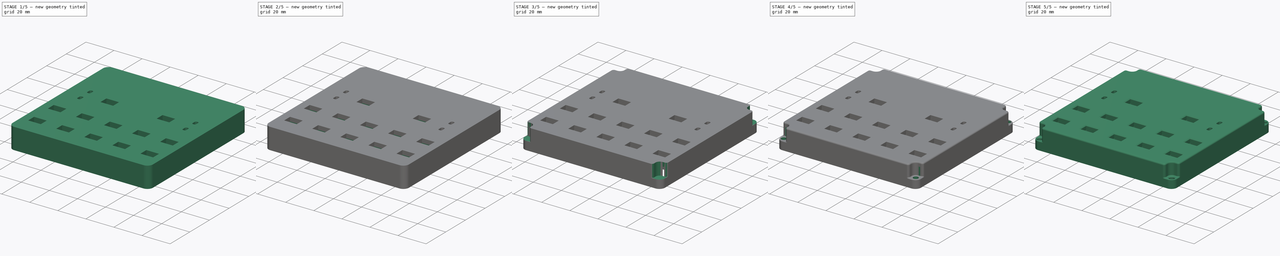
[diagram: build sequence overview — one tinted view per stage of 5, left to right]
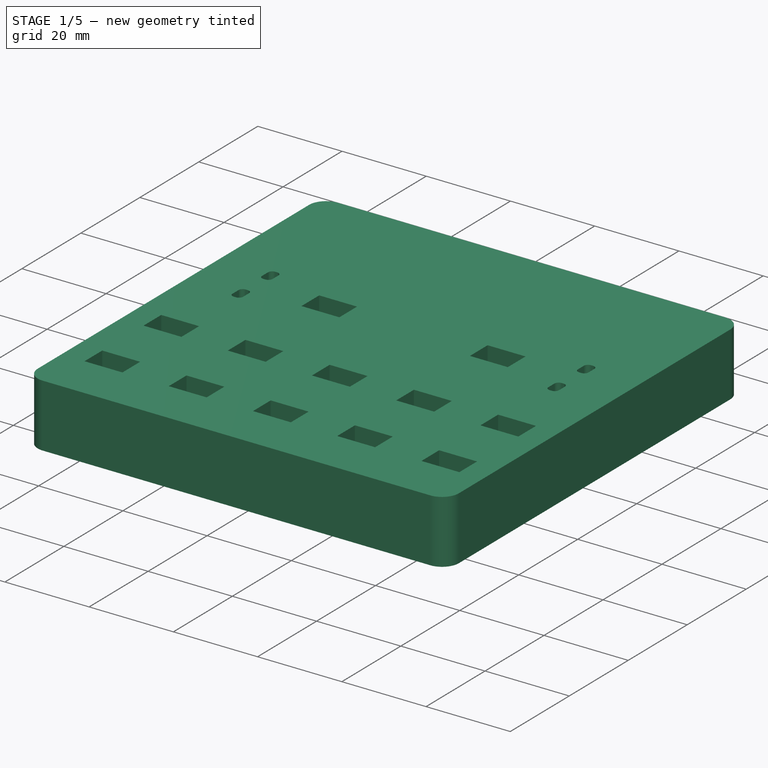
[diagram: stage 1 of 5 — iso view after this stage's code; geometry added in this stage tinted green]
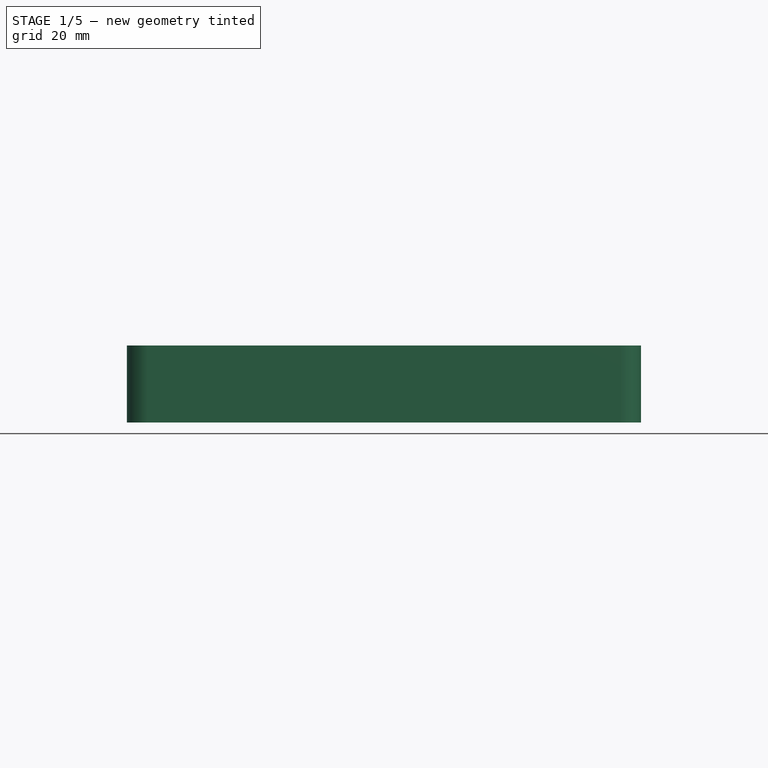
[diagram: stage 1 of 5 — front view after this stage's code; geometry added in this stage tinted green]
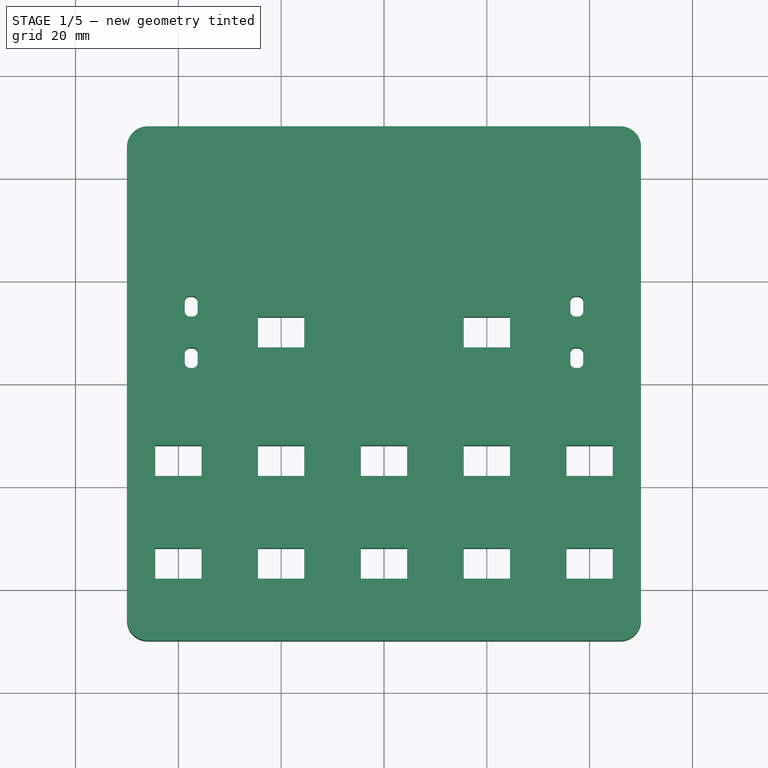
[diagram: stage 1 of 5 — top view after this stage's code; geometry added in this stage tinted green]
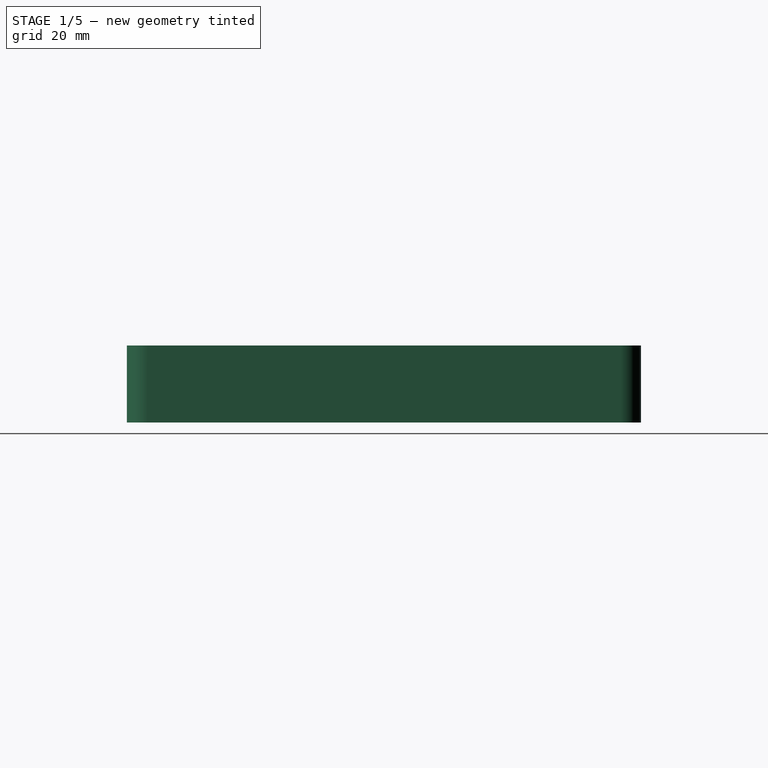
[diagram: stage 1 of 5 — right view after this stage's code; geometry added in this stage tinted green]
FCSTD DOCUMENT  (FreeCAD 0.21R33771 (Git))
Label: Case
License: All rights reserved
LicenseURL: http://en.wikipedia.org/wiki/All_rights_reserved
objects: Sketcher::SketchObject×12, PartDesign::Pocket×10, PartDesign::Fillet×3, PartDesign::Pad×2, PartDesign::Chamfer×2, PartDesign::Body×1
note: 47 computed .brp shape members not serialized (recipe doc carries the construction recipe); baked Part::Feature solids carry a one-line shape summary decoded from their .brp

FEATURE [Sketcher::SketchObject] Sketch  label="Base"
  FullyConstrained = true
  MapMode = 5
  Support = -> [XY_Plane]
  sketch-geometry (13):
    g0: LineSegment StartX=-50 StartY=46 StartZ=0 EndX=-50 EndY=-46 EndZ=0
    g1: LineSegment StartX=-46 StartY=-50 StartZ=0 EndX=46 EndY=-50 EndZ=0
    g2: LineSegment StartX=50 StartY=-46 StartZ=0 EndX=50 EndY=46 EndZ=0
    g3: LineSegment StartX=46 StartY=50 StartZ=0 EndX=-46 EndY=50 EndZ=0
    g4: GeomPoint X=0 Y=0 Z=0
    g5: ArcOfCircle CenterX=-46 CenterY=46 CenterZ=0 NormalX=0 NormalY=0 NormalZ=1 AngleXU=0 Radius=4 StartAngle=1.5708 EndAngle=3.14159
    g6: GeomPoint X=-50 Y=50 Z=0
    g7: ArcOfCircle CenterX=-46 CenterY=-46 CenterZ=0 NormalX=0 NormalY=0 NormalZ=1 AngleXU=0 Radius=4 StartAngle=3.14159 EndAngle=4.71239
    g8: GeomPoint X=-50 Y=-50 Z=0
    g9: ArcOfCircle CenterX=46 CenterY=-46 CenterZ=0 NormalX=0 NormalY=0 NormalZ=1 AngleXU=0 Radius=4 StartAngle=4.71239 EndAngle=6.28319
    g10: GeomPoint X=50 Y=-50 Z=0
    g11: ArcOfCircle CenterX=46 CenterY=46 CenterZ=0 NormalX=0 NormalY=0 NormalZ=1 AngleXU=0 Radius=4 StartAngle=7e-16 EndAngle=1.5708
    g12: GeomPoint X=50 Y=50 Z=0
  constraints (28):
    c: Horizontal(g1)
    c: Horizontal(g3)
    c: Vertical(g0)
    c: Vertical(g2)
    c: Symmetric(g10,g6,g4)
    c: Coincident(g4,g-1)
    c: DistanceX(g6,g12) = 100
    c: DistanceY(g10,g12) = 100
    c: PointOnObject(g6,g3)
    c: PointOnObject(g6,g0)
    c: Tangent(g3,g5) = -1.5708
    c: Tangent(g0,g5) = -1.5708
    c: PointOnObject(g8,g0)
    c: PointOnObject(g8,g1)
    c: Tangent(g0,g7) = -1.5708
    c: Tangent(g1,g7) = -1.5708
    c: PointOnObject(g10,g1)
    c: PointOnObject(g10,g2)
    c: Tangent(g1,g9) = -1.5708
    c: Tangent(g2,g9) = -1.5708
    c: PointOnObject(g12,g3)
    c: PointOnObject(g12,g2)
    c: Tangent(g3,g11) = -1.5708
    c: Tangent(g2,g11) = -1.5708
    c: Equal(g5,g11)
    c: Equal(g5,g9)
    c: Equal(g5,g7)
    c: Radius(g5) = 4
FEATURE [PartDesign::Pad] Pad  label="Base001"
  Direction = (0,0,1)
  Length = 15
  Length2 = 10
  Profile = -> Sketch
  ReferenceAxis = -> Sketch [N_Axis]
  Type = 0
FEATURE [Sketcher::SketchObject] Sketch001  label="Keycap holes"
  FullyConstrained = false
  MapMode = 5
  Placement = pos=(0,0,15) rot=(0,0,1;0rad)
  Support = -> [Pad]
  sketch-geometry (69):
    g0: LineSegment StartX=-35.5 StartY=-18 StartZ=0 EndX=-35.5 EndY=-12 EndZ=0
    g1: LineSegment StartX=-35.5 StartY=-12 StartZ=0 EndX=-44.5 EndY=-12 EndZ=0
    g2: LineSegment StartX=-44.5 StartY=-12 StartZ=0 EndX=-44.5 EndY=-18 EndZ=0
    g3: LineSegment StartX=-44.5 StartY=-18 StartZ=0 EndX=-35.5 EndY=-18 EndZ=0
    g4: GeomPoint X=-40 Y=-15 Z=0
    g5: GeomPoint X=-20 Y=-15 Z=0
    g6: LineSegment StartX=-15.5 StartY=-18 StartZ=0 EndX=-15.5 EndY=-12 EndZ=0
    g7: LineSegment StartX=-15.5 StartY=-12 StartZ=0 EndX=-24.5 EndY=-12 EndZ=0
    g8: LineSegment StartX=-24.5 StartY=-12 StartZ=0 EndX=-24.5 EndY=-18 EndZ=0
    g9: LineSegment StartX=-24.5 StartY=-18 StartZ=0 EndX=-15.5 EndY=-18 EndZ=0
    g10: LineSegment StartX=-40 StartY=-15 StartZ=0 EndX=-20 EndY=-15 EndZ=0
    g11: GeomPoint X=7.4479e-12 Y=-15 Z=0
    g12: LineSegment StartX=4.5 StartY=-18 StartZ=0 EndX=4.5 EndY=-12 EndZ=0
    g13: LineSegment StartX=4.5 StartY=-12 StartZ=0 EndX=-4.5 EndY=-12 EndZ=0
    g14: LineSegment StartX=-4.5 StartY=-12 StartZ=0 EndX=-4.5 EndY=-18 EndZ=0
    g15: LineSegment StartX=-4.5 StartY=-18 StartZ=0 EndX=4.5 EndY=-18 EndZ=0
    g16: LineSegment StartX=-20 StartY=-15 StartZ=0 EndX=7.4465e-12 EndY=-15 EndZ=0
    g17: GeomPoint X=20 Y=-15 Z=0
    g18: LineSegment StartX=24.5 StartY=-18 StartZ=0 EndX=24.5 EndY=-12 EndZ=0
    g19: LineSegment StartX=24.5 StartY=-12 StartZ=0 EndX=15.5 EndY=-12 EndZ=0
    g20: LineSegment StartX=15.5 StartY=-12 StartZ=0 EndX=15.5 EndY=-18 EndZ=0
    g21: LineSegment StartX=15.5 StartY=-18 StartZ=0 EndX=24.5 EndY=-18 EndZ=0
    g22: LineSegment StartX=7.4479e-12 StartY=-15 StartZ=0 EndX=20 EndY=-15 EndZ=0
    g23: GeomPoint X=40 Y=-15 Z=0
    g24: LineSegment StartX=44.5 StartY=-18 StartZ=0 EndX=44.5 EndY=-12 EndZ=0
    g25: LineSegment StartX=44.5 StartY=-12 StartZ=0 EndX=35.5 EndY=-12 EndZ=0
    g26: LineSegment StartX=35.5 StartY=-12 StartZ=0 EndX=35.5 EndY=-18 EndZ=0
    g27: LineSegment StartX=35.5 StartY=-18 StartZ=0 EndX=44.5 EndY=-18 EndZ=0
    g28: LineSegment StartX=20 StartY=-15 StartZ=0 EndX=40 EndY=-15 EndZ=0
    g29: GeomPoint X=-40 Y=-35 Z=0
    g30: LineSegment StartX=-35.5 StartY=-38 StartZ=0 EndX=-35.5 EndY=-32 EndZ=0
    g31: LineSegment StartX=-35.5 StartY=-32 StartZ=0 EndX=-44.5 EndY=-32 EndZ=0
    g32: LineSegment StartX=-44.5 StartY=-32 StartZ=0 EndX=-44.5 EndY=-38 EndZ=0
    g33: LineSegment StartX=-44.5 StartY=-38 StartZ=0 EndX=-35.5 EndY=-38 EndZ=0
    g34: LineSegment StartX=-40 StartY=-15 StartZ=0 EndX=-40 EndY=-35 EndZ=0
    g35: GeomPoint X=-20 Y=-35 Z=0
    g36: LineSegment StartX=-15.5 StartY=-38 StartZ=0 EndX=-15.5 EndY=-32 EndZ=0
    g37: LineSegment StartX=-15.5 StartY=-32 StartZ=0 EndX=-24.5 EndY=-32 EndZ=0
    g38: LineSegment StartX=-24.5 StartY=-32 StartZ=0 EndX=-24.5 EndY=-38 EndZ=0
    g39: LineSegment StartX=-24.5 StartY=-38 StartZ=0 EndX=-15.5 EndY=-38 EndZ=0
    g40: LineSegment StartX=-40 StartY=-35 StartZ=0 EndX=-20 EndY=-35 EndZ=0
    g41: GeomPoint X=6.98e-14 Y=-35 Z=0
    g42: LineSegment StartX=4.5 StartY=-38 StartZ=0 EndX=4.5 EndY=-32 EndZ=0
    g43: LineSegment StartX=4.5 StartY=-32 StartZ=0 EndX=-4.5 EndY=-32 EndZ=0
    g44: LineSegment StartX=-4.5 StartY=-32 StartZ=0 EndX=-4.5 EndY=-38 EndZ=0
    g45: LineSegment StartX=-4.5 StartY=-38 StartZ=0 EndX=4.5 EndY=-38 EndZ=0
    g46: LineSegment StartX=-20 StartY=-35 StartZ=0 EndX=7.11e-14 EndY=-35 EndZ=0
    g47: GeomPoint X=20 Y=-35 Z=0
    g48: LineSegment StartX=24.5 StartY=-38 StartZ=0 EndX=24.5 EndY=-32 EndZ=0
    g49: LineSegment StartX=24.5 StartY=-32 StartZ=0 EndX=15.5 EndY=-32 EndZ=0
    g50: LineSegment StartX=15.5 StartY=-32 StartZ=0 EndX=15.5 EndY=-38 EndZ=0
    g51: LineSegment StartX=15.5 StartY=-38 StartZ=0 EndX=24.5 EndY=-38 EndZ=0
    g52: LineSegment StartX=6.98e-14 StartY=-35 StartZ=0 EndX=20 EndY=-35 EndZ=0
    g53: GeomPoint X=40 Y=-35 Z=0
    g54: LineSegment StartX=44.5 StartY=-38 StartZ=0 EndX=44.5 EndY=-32 EndZ=0
    g55: LineSegment StartX=44.5 StartY=-32 StartZ=0 EndX=35.5 EndY=-32 EndZ=0
    g56: LineSegment StartX=35.5 StartY=-32 StartZ=0 EndX=35.5 EndY=-38 EndZ=0
    g57: LineSegment StartX=35.5 StartY=-38 StartZ=0 EndX=44.5 EndY=-38 EndZ=0
    g58: LineSegment StartX=20 StartY=-35 StartZ=0 EndX=40 EndY=-35 EndZ=0
    g59: GeomPoint X=-20 Y=10 Z=0
    g60: LineSegment StartX=-15.5 StartY=7 StartZ=0 EndX=-15.5 EndY=13 EndZ=0
    g61: LineSegment StartX=-15.5 StartY=13 StartZ=0 EndX=-24.5 EndY=13 EndZ=0
    g62: LineSegment StartX=-24.5 StartY=13 StartZ=0 EndX=-24.5 EndY=7 EndZ=0
    g63: LineSegment StartX=-24.5 StartY=7 StartZ=0 EndX=-15.5 EndY=7 EndZ=0
    g64: LineSegment StartX=24.5 StartY=7 StartZ=0 EndX=24.5 EndY=13 EndZ=0
    g65: LineSegment StartX=24.5 StartY=13 StartZ=0 EndX=15.5 EndY=13 EndZ=0
    g66: LineSegment StartX=15.5 StartY=13 StartZ=0 EndX=15.5 EndY=7 EndZ=0
    g67: LineSegment StartX=15.5 StartY=7 StartZ=0 EndX=24.5 EndY=7 EndZ=0
    g68: GeomPoint X=20 Y=10 Z=0
  constraints (174):
    c: Coincident(g0,g1)
    c: Coincident(g1,g2)
    c: Coincident(g2,g3)
    c: Coincident(g3,g0)
    c: Horizontal(g1)
    c: Horizontal(g3)
    c: Vertical(g0)
    c: Vertical(g2)
    c: Symmetric(g1,g0,g4)
    c: DistanceX(g1,g1) = 9
    c: DistanceY(g0,g0) = 6
    c: Coincident(g6,g7)
    c: Coincident(g7,g8)
    c: Coincident(g8,g9)
    c: Coincident(g9,g6)
    c: Horizontal(g7)
    c: Horizontal(g9)
    c: Vertical(g6)
    c: Vertical(g8)
    c: Symmetric(g7,g6,g5)
    c: Equal(g1,g7) = 9
    c: Equal(g0,g6) = 6
    c: Coincident(g4,g10)
    c: Coincident(g5,g10)
    c: Distance(g10) = 20
    c: Angle(g10) = 0
    c: Coincident(g12,g13)
    c: Coincident(g13,g14)
    c: Coincident(g14,g15)
    c: Coincident(g15,g12)
    c: Horizontal(g13)
    c: Horizontal(g15)
    c: Vertical(g12)
    c: Vertical(g14)
    c: Symmetric(g13,g12,g11)
    c: Equal(g1,g13) = 9
    c: Equal(g0,g12) = 6
    c: Coincident(g5,g16)
    c: Coincident(g11,g16)
    c: Equal(g10,g16)
    c: Parallel(g16,g10)
    c: Coincident(g18,g19)
    c: Coincident(g19,g20)
    c: Coincident(g20,g21)
    c: Coincident(g21,g18)
    c: Horizontal(g19)
    c: Horizontal(g21)
    c: Vertical(g18)
    c: Vertical(g20)
    c: Symmetric(g19,g18,g17)
    c: Equal(g1,g19) = 9
    c: Equal(g0,g18) = 6
    c: Coincident(g11,g22)
    c: Coincident(g17,g22)
    c: Equal(g10,g22)
    c: Parallel(g22,g10)
    c: Coincident(g24,g25)
    c: Coincident(g25,g26)
    c: Coincident(g26,g27)
    c: Coincident(g27,g24)
    c: Horizontal(g25)
    c: Horizontal(g27)
    c: Vertical(g24)
    c: Vertical(g26)
    c: Symmetric(g25,g24,g23)
    c: Equal(g1,g25) = 9
    c: Equal(g0,g24) = 6
    c: Coincident(g17,g28)
    c: Coincident(g23,g28)
    c: Equal(g10,g28)
    c: Parallel(g28,g10)
    c: Coincident(g30,g31)
    c: Coincident(g31,g32)
    c: Coincident(g32,g33)
    c: Coincident(g33,g30)
    c: Horizontal(g31)
    c: Horizontal(g33)
    c: Vertical(g30)
    c: Vertical(g32)
    c: Symmetric(g31,g30,g29)
    c: Equal(g1,g31) = 9
    c: Equal(g0,g30) = 6
    c: Coincident(g4,g34)
    c: Coincident(g29,g34)
    c: Distance(g34) = 20
    c: Perpendicular(g34,g10)
    c: Coincident(g36,g37)
    c: Coincident(g37,g38)
    c: Coincident(g38,g39)
    c: Coincident(g39,g36)
    c: Horizontal(g37)
    c: Horizontal(g39)
    c: Vertical(g36)
    c: Vertical(g38)
    c: Symmetric(g37,g36,g35)
    c: Equal(g1,g37) = 9
    c: Equal(g0,g36) = 6
    c: Coincident(g29,g40)
    c: Coincident(g35,g40)
    c: Equal(g10,g40)
    c: Parallel(g40,g10)
    c: Coincident(g42,g43)
    c: Coincident(g43,g44)
    c: Coincident(g44,g45)
    c: Coincident(g45,g42)
    c: Horizontal(g43)
    c: Horizontal(g45)
    c: Vertical(g42)
    c: Vertical(g44)
    c: Symmetric(g43,g42,g41)
    c: Equal(g1,g43) = 9
    c: Equal(g0,g42) = 6
    c: Coincident(g35,g46)
    c: Coincident(g41,g46)
    c: Equal(g10,g46)
    c: Parallel(g46,g10)
    c: Coincident(g48,g49)
    c: Coincident(g49,g50)
    c: Coincident(g50,g51)
    c: Coincident(g51,g48)
    c: Horizontal(g49)
    c: Horizontal(g51)
    c: Vertical(g48)
    c: Vertical(g50)
    c: Symmetric(g49,g48,g47)
    c: Equal(g1,g49) = 9
    c: Equal(g0,g48) = 6
    c: Coincident(g41,g52)
    c: Coincident(g47,g52)
    c: Equal(g10,g52)
    c: Parallel(g52,g10)
    c: Coincident(g54,g55)
    c: Coincident(g55,g56)
    c: Coincident(g56,g57)
    c: Coincident(g57,g54)
    c: Horizontal(g55)
    c: Horizontal(g57)
    c: Vertical(g54)
    c: Vertical(g56)
    c: Symmetric(g55,g54,g53)
    c: Equal(g1,g55) = 9
    c: Equal(g0,g54) = 6
    c: Coincident(g47,g58)
    c: Coincident(g53,g58)
    c: Equal(g10,g58)
    c: Parallel(g58,g10)
    c: DistanceX(g-3,g29) = 10
    c: DistanceY(g-4,g29) = 15
    c: Coincident(g60,g61)
    c: Coincident(g61,g62)
    c: Coincident(g62,g63)
    c: Coincident(g63,g60)
    c: Horizontal(g61)
    c: Horizontal(g63)
    c: Vertical(g60)
    c: Vertical(g62)
    c: Symmetric(g61,g60,g59)
    c: Equal(g1,g61) = 9
    c: Equal(g0,g60) = 6
    c: Coincident(g64,g65)
    c: Coincident(g65,g66)
    c: Coincident(g66,g67)
    c: Coincident(g67,g64)
    c: Horizontal(g65)
    c: Horizontal(g67)
    c: Vertical(g64)
    c: Vertical(g66)
    c: Symmetric(g65,g64,g68)
    c: Equal(g1,g65) = 9
    c: Equal(g0,g64) = 6
    c: Vertical(g59,g5)
    c: Vertical(g68,g17)
    c: Horizontal(g59,g68)
    c: DistanceY(g5,g59) = 25
FEATURE [PartDesign::Pocket] Pocket  label="Keycap holes001"
  BaseFeature = -> Pad
  Direction = (0,0,-1)
  Length = 0
  Length2 = 5
  Profile = -> Sketch001
  ReferenceAxis = -> Sketch001 [N_Axis]
  Type = 3
  UpToFace = -> Pad [Face9]
FEATURE [Sketcher::SketchObject] Sketch002  label="LED holes"
  ExternalGeometry = -> [Pocket]
  FullyConstrained = true
  MapMode = 5
  Placement = pos=(0,0,15) rot=(0,0,1;0rad)
  Support = -> [Pocket]
  sketch-geometry (52):
    g0: LineSegment StartX=-38.75 StartY=16 StartZ=0 EndX=-38.75 EndY=14 EndZ=0
    g1: LineSegment StartX=-37.75 StartY=13 StartZ=0 EndX=-37.25 EndY=13 EndZ=0
    g2: LineSegment StartX=-36.25 StartY=14 StartZ=0 EndX=-36.25 EndY=16 EndZ=0
    g3: LineSegment StartX=-37.25 StartY=17 StartZ=0 EndX=-37.75 EndY=17 EndZ=0
    g4: GeomPoint X=-37.5 Y=15 Z=0
    g5: ArcOfCircle CenterX=-37.75 CenterY=16 CenterZ=0 NormalX=0 NormalY=0 NormalZ=1 AngleXU=0 Radius=1 StartAngle=1.5708 EndAngle=3.14159
    g6: GeomPoint X=-38.75 Y=17 Z=0
    g7: ArcOfCircle CenterX=-37.25 CenterY=16 CenterZ=0 NormalX=0 NormalY=0 NormalZ=1 AngleXU=0 Radius=1 StartAngle=-9e-16 EndAngle=1.5708
    g8: GeomPoint X=-36.25 Y=17 Z=0
    g9: ArcOfCircle CenterX=-37.25 CenterY=14 CenterZ=0 NormalX=0 NormalY=0 NormalZ=1 AngleXU=0 Radius=1 StartAngle=4.71239 EndAngle=6.28319
    g10: GeomPoint X=-36.25 Y=13 Z=0
    g11: ArcOfCircle CenterX=-37.75 CenterY=14 CenterZ=0 NormalX=0 NormalY=0 NormalZ=1 AngleXU=0 Radius=1 StartAngle=3.14159 EndAngle=4.71239
    g12: GeomPoint X=-38.75 Y=13 Z=0
    g13: LineSegment StartX=-38.75 StartY=6 StartZ=0 EndX=-38.75 EndY=4 EndZ=0
    g14: LineSegment StartX=-37.75 StartY=3 StartZ=0 EndX=-37.25 EndY=3 EndZ=0
    g15: LineSegment StartX=-36.25 StartY=4 StartZ=0 EndX=-36.25 EndY=6 EndZ=0
    g16: LineSegment StartX=-37.25 StartY=7 StartZ=0 EndX=-37.75 EndY=7 EndZ=0
    g17: GeomPoint X=-37.5 Y=5 Z=0
    g18: ArcOfCircle CenterX=-37.75 CenterY=6 CenterZ=0 NormalX=0 NormalY=0 NormalZ=1 AngleXU=0 Radius=1 StartAngle=1.5708 EndAngle=3.14159
    g19: GeomPoint X=-38.75 Y=7 Z=0
    g20: ArcOfCircle CenterX=-37.25 CenterY=6 CenterZ=0 NormalX=0 NormalY=0 NormalZ=1 AngleXU=0 Radius=1 StartAngle=1e-16 EndAngle=1.5708
    g21: GeomPoint X=-36.25 Y=7 Z=0
    g22: ArcOfCircle CenterX=-37.25 CenterY=4 CenterZ=0 NormalX=0 NormalY=0 NormalZ=1 AngleXU=0 Radius=1 StartAngle=4.71239 EndAngle=6.28319
    g23: GeomPoint X=-36.25 Y=3 Z=0
    g24: ArcOfCircle CenterX=-37.75 CenterY=4 CenterZ=0 NormalX=0 NormalY=0 NormalZ=1 AngleXU=0 Radius=1 StartAngle=3.14159 EndAngle=4.71239
    g25: GeomPoint X=-38.75 Y=3 Z=0
    g26: LineSegment StartX=36.25 StartY=16 StartZ=0 EndX=36.25 EndY=14 EndZ=0
    g27: LineSegment StartX=37.25 StartY=13 StartZ=0 EndX=37.75 EndY=13 EndZ=0
    g28: LineSegment StartX=38.75 StartY=14 StartZ=0 EndX=38.75 EndY=16 EndZ=0
    g29: LineSegment StartX=37.75 StartY=17 StartZ=0 EndX=37.25 EndY=17 EndZ=0
    g30: GeomPoint X=37.5 Y=15 Z=0
    g31: ArcOfCircle CenterX=37.25 CenterY=16 CenterZ=0 NormalX=0 NormalY=0 NormalZ=1 AngleXU=0 Radius=1 StartAngle=1.5708 EndAngle=3.14159
    g32: GeomPoint X=36.25 Y=17 Z=0
    g33: ArcOfCircle CenterX=37.75 CenterY=16 CenterZ=0 NormalX=0 NormalY=0 NormalZ=1 AngleXU=0 Radius=1 StartAngle=0 EndAngle=1.5708
    g34: GeomPoint X=38.75 Y=17 Z=0
    g35: ArcOfCircle CenterX=37.75 CenterY=14 CenterZ=0 NormalX=0 NormalY=0 NormalZ=1 AngleXU=0 Radius=1 StartAngle=4.71239 EndAngle=6.28319
    g36: GeomPoint X=38.75 Y=13 Z=0
    g37: ArcOfCircle CenterX=37.25 CenterY=14 CenterZ=0 NormalX=0 NormalY=0 NormalZ=1 AngleXU=0 Radius=1 StartAngle=3.14159 EndAngle=4.71239
    g38: GeomPoint X=36.25 Y=13 Z=0
    g39: LineSegment StartX=36.25 StartY=6 StartZ=0 EndX=36.25 EndY=4 EndZ=0
    g40: LineSegment StartX=37.25 StartY=3 StartZ=0 EndX=37.75 EndY=3 EndZ=0
    g41: LineSegment StartX=38.75 StartY=4 StartZ=0 EndX=38.75 EndY=6 EndZ=0
    g42: LineSegment StartX=37.75 StartY=7 StartZ=0 EndX=37.25 EndY=7 EndZ=0
    g43: GeomPoint X=37.5 Y=5 Z=0
    g44: ArcOfCircle CenterX=37.25 CenterY=6 CenterZ=0 NormalX=0 NormalY=0 NormalZ=1 AngleXU=0 Radius=1 StartAngle=1.5708 EndAngle=3.14159
    g45: GeomPoint X=36.25 Y=7 Z=0
    g46: ArcOfCircle CenterX=37.75 CenterY=6 CenterZ=0 NormalX=0 NormalY=0 NormalZ=1 AngleXU=0 Radius=1 StartAngle=3e-16 EndAngle=1.5708
    g47: GeomPoint X=38.75 Y=7 Z=0
    g48: ArcOfCircle CenterX=37.75 CenterY=4 CenterZ=0 NormalX=0 NormalY=0 NormalZ=1 AngleXU=0 Radius=1 StartAngle=4.71239 EndAngle=6.28319
    g49: GeomPoint X=38.75 Y=3 Z=0
    g50: ArcOfCircle CenterX=37.25 CenterY=4 CenterZ=0 NormalX=0 NormalY=0 NormalZ=1 AngleXU=0 Radius=1 StartAngle=3.14159 EndAngle=4.71239
    g51: GeomPoint X=36.25 Y=3 Z=0
  constraints (115):
    c: Horizontal(g1)
    c: Horizontal(g3)
    c: Vertical(g0)
    c: Vertical(g2)
    c: Symmetric(g10,g6,g4)
    c: DistanceX(g6,g8) = 2.5
    c: DistanceY(g10,g8) = 4
    c: PointOnObject(g6,g0)
    c: PointOnObject(g6,g3)
    c: Tangent(g0,g5) = -1.5708
    c: Tangent(g3,g5) = -1.5708
    c: PointOnObject(g8,g3)
    c: PointOnObject(g8,g2)
    c: Tangent(g3,g7) = -1.5708
    c: Tangent(g2,g7) = -1.5708
    c: PointOnObject(g10,g2)
    c: PointOnObject(g10,g1)
    c: Tangent(g2,g9) = -1.5708
    c: Tangent(g1,g9) = -1.5708
    c: PointOnObject(g12,g1)
    c: PointOnObject(g12,g0)
    c: Tangent(g1,g11) = -1.5708
    c: Tangent(g0,g11) = -1.5708
    c: Equal(g5,g7)
    c: Equal(g5,g9)
    c: Equal(g5,g11)
    c: Radius(g5) = 1
    c: Horizontal(g14)
    c: Horizontal(g16)
    c: Vertical(g13)
    c: Vertical(g15)
    c: Symmetric(g23,g19,g17)
    c: DistanceX(g19,g21) = 2.5
    c: DistanceY(g23,g21) = 4
    c: PointOnObject(g19,g13)
    c: PointOnObject(g19,g16)
    c: Tangent(g13,g18) = -1.5708
    c: Tangent(g16,g18) = -1.5708
    c: PointOnObject(g21,g16)
    c: PointOnObject(g21,g15)
    c: Tangent(g16,g20) = -1.5708
    c: Tangent(g15,g20) = -1.5708
    c: PointOnObject(g23,g15)
    c: PointOnObject(g23,g14)
    c: Tangent(g15,g22) = -1.5708
    c: Tangent(g14,g22) = -1.5708
    c: PointOnObject(g25,g14)
    c: PointOnObject(g25,g13)
    c: Tangent(g14,g24) = -1.5708
    c: Tangent(g13,g24) = -1.5708
    c: Equal(g18,g20)
    c: Equal(g18,g22)
    c: Equal(g18,g24)
    c: Equal(g5,g18) = 1
    c: Vertical(g17,g4)
    c: DistanceY(g17,g4) = 10
    c: DistanceX(g-3,g4) = 12.5
    c: DistanceY(g4,g-4) = 35
    c: Horizontal(g27)
    c: Horizontal(g29)
    c: Vertical(g26)
    c: Vertical(g28)
    c: Symmetric(g36,g32,g30)
    c: DistanceX(g32,g34) = 2.5
    c: DistanceY(g36,g34) = 4
    c: PointOnObject(g32,g26)
    c: PointOnObject(g32,g29)
    c: Tangent(g26,g31) = -1.5708
    c: Tangent(g29,g31) = -1.5708
    c: PointOnObject(g34,g29)
    c: PointOnObject(g34,g28)
    c: Tangent(g29,g33) = -1.5708
    c: Tangent(g28,g33) = -1.5708
    c: PointOnObject(g36,g28)
    c: PointOnObject(g36,g27)
    c: Tangent(g28,g35) = -1.5708
    c: Tangent(g27,g35) = -1.5708
    c: PointOnObject(g38,g27)
    c: PointOnObject(g38,g26)
    c: Tangent(g27,g37) = -1.5708
    c: Tangent(g26,g37) = -1.5708
    c: Equal(g31,g33)
    c: Equal(g31,g35)
    c: Equal(g31,g37)
    c: Equal(g5,g31) = 1
    c: Horizontal(g40)
    c: Horizontal(g42)
    c: Vertical(g39)
    c: Vertical(g41)
    c: Symmetric(g49,g45,g43)
    c: DistanceX(g45,g47) = 2.5
    c: DistanceY(g49,g47) = 4
    c: PointOnObject(g45,g39)
    c: PointOnObject(g45,g42)
    c: Tangent(g39,g44) = -1.5708
    c: Tangent(g42,g44) = -1.5708
    c: PointOnObject(g47,g42)
    c: PointOnObject(g47,g41)
    c: Tangent(g42,g46) = -1.5708
    c: Tangent(g41,g46) = -1.5708
    c: PointOnObject(g49,g41)
    c: PointOnObject(g49,g40)
    c: Tangent(g41,g48) = -1.5708
    c: Tangent(g40,g48) = -1.5708
    c: PointOnObject(g51,g40)
    c: PointOnObject(g51,g39)
    c: Tangent(g40,g50) = -1.5708
    c: Tangent(g39,g50) = -1.5708
    c: Equal(g44,g46)
    c: Equal(g44,g48)
    c: Equal(g44,g50)
    c: Equal(g31,g44) = 1
    c: Vertical(g43,g30)
    c: DistanceY(g43,g30) = 10
    c: Symmetric(g4,g30,g-2)
FEATURE [PartDesign::Pocket] Pocket001  label="LED holes001"
  BaseFeature = -> Pocket
  Direction = (0,0,-1)
  Length = 0
  Length2 = 5
  Profile = -> Sketch002
  ReferenceAxis = -> Sketch002 [N_Axis]
  Type = 3
  UpToFace = -> Pocket [Face4]
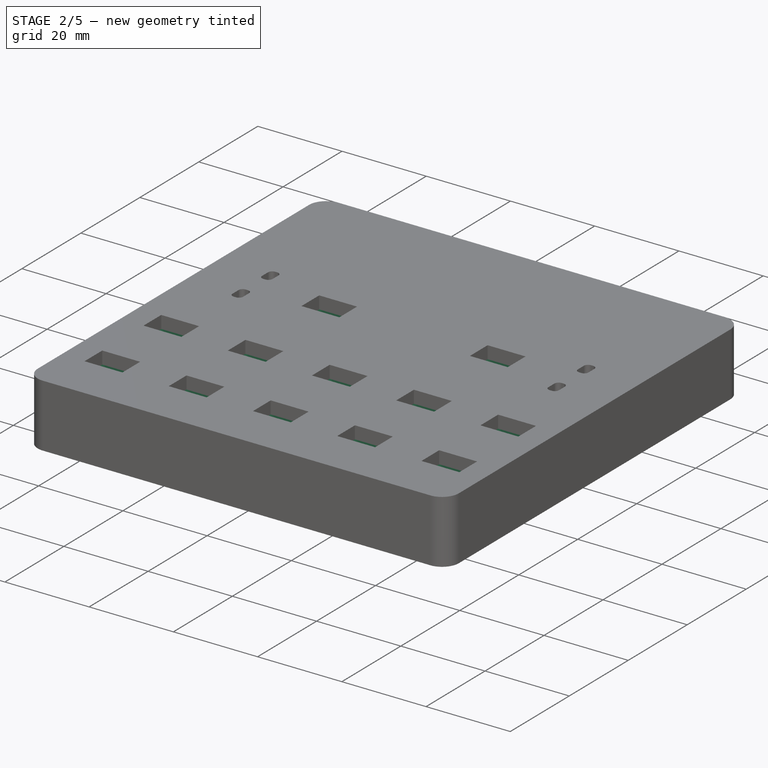
[diagram: stage 2 of 5 — iso view after this stage's code; geometry added in this stage tinted green]
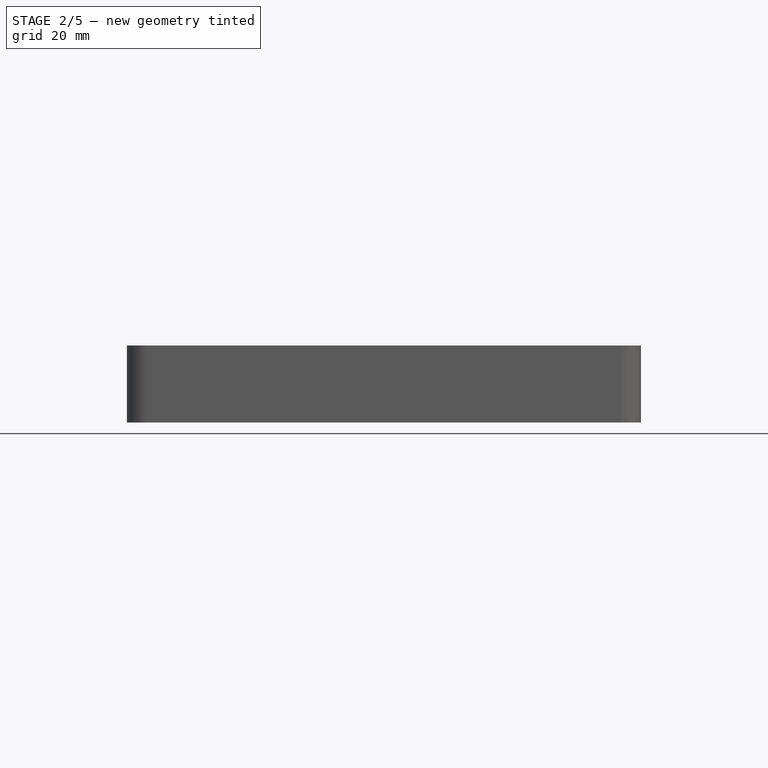
[diagram: stage 2 of 5 — front view after this stage's code; geometry added in this stage tinted green]
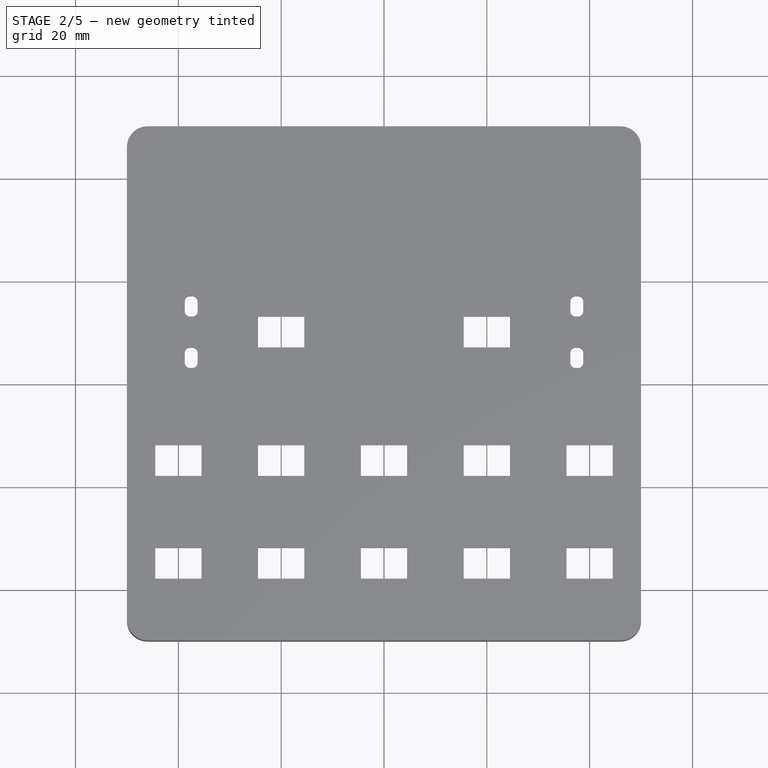
[diagram: stage 2 of 5 — top view after this stage's code; geometry added in this stage tinted green]
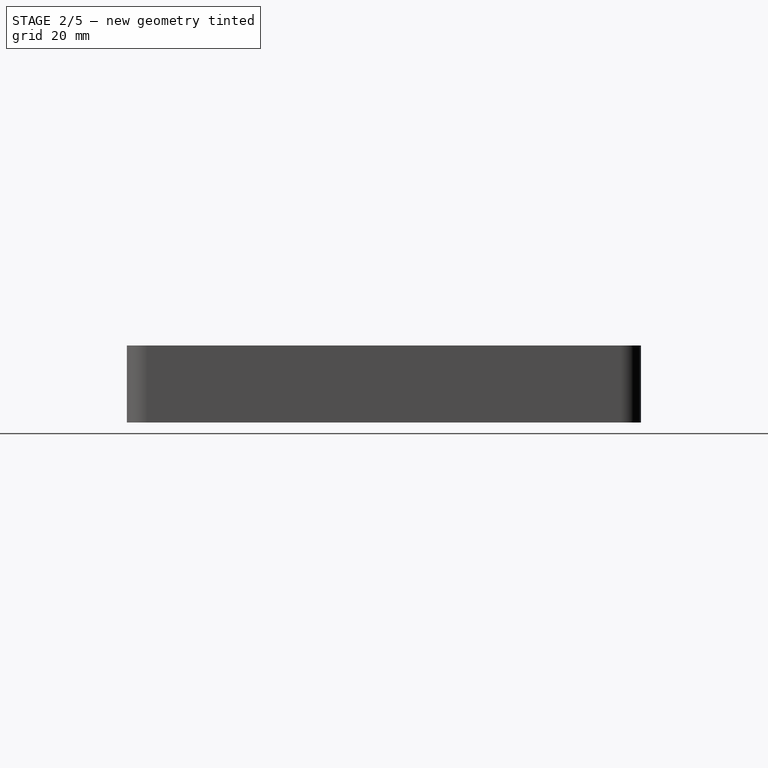
[diagram: stage 2 of 5 — right view after this stage's code; geometry added in this stage tinted green]
FEATURE [Sketcher::SketchObject] Sketch003  label="Switch cutouts"
  ExternalGeometry = -> [Pocket001]
  FullyConstrained = true
  MapMode = 5
  Placement = pos=(0,0,0) rot=(1,0,0;3.14159rad)
  Support = -> [Pocket001]
  sketch-geometry (165):
    g0: LineSegment StartX=-31 StartY=27 StartZ=0 EndX=-31 EndY=43 EndZ=0
    g1: LineSegment StartX=-32 StartY=44 StartZ=0 EndX=-48 EndY=44 EndZ=0
    g2: LineSegment StartX=-49 StartY=43 StartZ=0 EndX=-49 EndY=27 EndZ=0
    g3: LineSegment StartX=-48 StartY=26 StartZ=0 EndX=-32 EndY=26 EndZ=0
    g4: GeomPoint X=-40 Y=35 Z=0
    g5: ArcOfCircle CenterX=-32 CenterY=27 CenterZ=0 NormalX=0 NormalY=0 NormalZ=1 AngleXU=0 Radius=1 StartAngle=4.71239 EndAngle=6.28319
    g6: GeomPoint X=-31 Y=26 Z=0
    g7: ArcOfCircle CenterX=-48 CenterY=27 CenterZ=0 NormalX=0 NormalY=0 NormalZ=1 AngleXU=0 Radius=1 StartAngle=3.14159 EndAngle=4.71239
    g8: GeomPoint X=-49 Y=26 Z=0
    g9: ArcOfCircle CenterX=-48 CenterY=43 CenterZ=0 NormalX=0 NormalY=0 NormalZ=1 AngleXU=0 Radius=1 StartAngle=1.5708 EndAngle=3.14159
    g10: GeomPoint X=-49 Y=44 Z=0
    g11: ArcOfCircle CenterX=-32 CenterY=43 CenterZ=0 NormalX=0 NormalY=0 NormalZ=1 AngleXU=0 Radius=1 StartAngle=2.1e-15 EndAngle=1.5708
    g12: GeomPoint X=-31 Y=44 Z=0
    g13: LineSegment StartX=-11 StartY=27 StartZ=0 EndX=-11 EndY=43 EndZ=0
    g14: LineSegment StartX=-12 StartY=44 StartZ=0 EndX=-28 EndY=44 EndZ=0
    g15: LineSegment StartX=-29 StartY=43 StartZ=0 EndX=-29 EndY=27 EndZ=0
    g16: LineSegment StartX=-28 StartY=26 StartZ=0 EndX=-12 EndY=26 EndZ=0
    g17: GeomPoint X=-20 Y=35 Z=0
    g18: ArcOfCircle CenterX=-12 CenterY=27 CenterZ=0 NormalX=0 NormalY=0 NormalZ=1 AngleXU=0 Radius=1 StartAngle=4.71239 EndAngle=6.28319
    g19: GeomPoint X=-11 Y=26 Z=0
    g20: ArcOfCircle CenterX=-28 CenterY=27 CenterZ=0 NormalX=0 NormalY=0 NormalZ=1 AngleXU=0 Radius=1 StartAngle=3.14159 EndAngle=4.71239
    g21: GeomPoint X=-29 Y=26 Z=0
    g22: ArcOfCircle CenterX=-28 CenterY=43 CenterZ=0 NormalX=0 NormalY=0 NormalZ=1 AngleXU=0 Radius=1 StartAngle=1.5708 EndAngle=3.14159
    g23: GeomPoint X=-29 Y=44 Z=0
    g24: ArcOfCircle CenterX=-12 CenterY=43 CenterZ=0 NormalX=0 NormalY=0 NormalZ=1 AngleXU=0 Radius=1 StartAngle=-1.8e-15 EndAngle=1.5708
    g25: GeomPoint X=-11 Y=44 Z=0
    g26: LineSegment StartX=-31 StartY=27 StartZ=0 EndX=-11 EndY=27 EndZ=0
    g27: LineSegment StartX=9 StartY=27 StartZ=0 EndX=9 EndY=43 EndZ=0
    g28: LineSegment StartX=8 StartY=44 StartZ=0 EndX=-8 EndY=44 EndZ=0
    g29: LineSegment StartX=-9 StartY=43 StartZ=0 EndX=-9 EndY=27 EndZ=0
    g30: LineSegment StartX=-8 StartY=26 StartZ=0 EndX=8 EndY=26 EndZ=0
    g31: GeomPoint X=-3.3e-15 Y=35 Z=0
    g32: ArcOfCircle CenterX=8 CenterY=27 CenterZ=0 NormalX=0 NormalY=0 NormalZ=1 AngleXU=0 Radius=1 StartAngle=4.71239 EndAngle=6.28319
    g33: GeomPoint X=9 Y=26 Z=0
    g34: ArcOfCircle CenterX=-8 CenterY=27 CenterZ=0 NormalX=0 NormalY=0 NormalZ=1 AngleXU=0 Radius=1 StartAngle=3.14159 EndAngle=4.71239
    g35: GeomPoint X=-9 Y=26 Z=0
    g36: ArcOfCircle CenterX=-8 CenterY=43 CenterZ=0 NormalX=0 NormalY=0 NormalZ=1 AngleXU=0 Radius=1 StartAngle=1.5708 EndAngle=3.14159
    g37: GeomPoint X=-9 Y=44 Z=0
    g38: ArcOfCircle CenterX=8 CenterY=43 CenterZ=0 NormalX=0 NormalY=0 NormalZ=1 AngleXU=0 Radius=1 StartAngle=-2.7e-15 EndAngle=1.5708
    g39: GeomPoint X=9 Y=44 Z=0
    g40: LineSegment StartX=-11 StartY=27 StartZ=0 EndX=9 EndY=27 EndZ=0
    g41: LineSegment StartX=29 StartY=27 StartZ=0 EndX=29 EndY=43 EndZ=0
    g42: LineSegment StartX=28 StartY=44 StartZ=0 EndX=12 EndY=44 EndZ=0
    g43: LineSegment StartX=11 StartY=43 StartZ=0 EndX=11 EndY=27 EndZ=0
    g44: LineSegment StartX=12 StartY=26 StartZ=0 EndX=28 EndY=26 EndZ=0
    g45: GeomPoint X=20 Y=35 Z=0
    g46: ArcOfCircle CenterX=28 CenterY=27 CenterZ=0 NormalX=0 NormalY=0 NormalZ=1 AngleXU=0 Radius=1 StartAngle=4.71239 EndAngle=6.28319
    g47: GeomPoint X=29 Y=26 Z=0
    g48: ArcOfCircle CenterX=12 CenterY=27 CenterZ=0 NormalX=0 NormalY=0 NormalZ=1 AngleXU=0 Radius=1 StartAngle=3.14159 EndAngle=4.71239
    g49: GeomPoint X=11 Y=26 Z=0
    g50: ArcOfCircle CenterX=12 CenterY=43 CenterZ=0 NormalX=0 NormalY=0 NormalZ=1 AngleXU=0 Radius=1 StartAngle=1.5708 EndAngle=3.14159
    g51: GeomPoint X=11 Y=44 Z=0
    g52: ArcOfCircle CenterX=28 CenterY=43 CenterZ=0 NormalX=0 NormalY=0 NormalZ=1 AngleXU=0 Radius=1 StartAngle=-1.8e-15 EndAngle=1.5708
    g53: GeomPoint X=29 Y=44 Z=0
    g54: LineSegment StartX=9 StartY=27 StartZ=0 EndX=29 EndY=27 EndZ=0
    g55: LineSegment StartX=49 StartY=27 StartZ=0 EndX=49 EndY=43 EndZ=0
    g56: LineSegment StartX=48 StartY=44 StartZ=0 EndX=32 EndY=44 EndZ=0
    g57: LineSegment StartX=31 StartY=43 StartZ=0 EndX=31 EndY=27 EndZ=0
    g58: LineSegment StartX=32 StartY=26 StartZ=0 EndX=48 EndY=26 EndZ=0
    g59: GeomPoint X=40 Y=35 Z=0
    g60: ArcOfCircle CenterX=48 CenterY=27 CenterZ=0 NormalX=0 NormalY=0 NormalZ=1 AngleXU=0 Radius=1 StartAngle=4.71239 EndAngle=6.28319
    g61: GeomPoint X=49 Y=26 Z=0
    g62: ArcOfCircle CenterX=32 CenterY=27 CenterZ=0 NormalX=0 NormalY=0 NormalZ=1 AngleXU=0 Radius=1 StartAngle=3.14159 EndAngle=4.71239
    g63: GeomPoint X=31 Y=26 Z=0
    g64: ArcOfCircle CenterX=32 CenterY=43 CenterZ=0 NormalX=0 NormalY=0 NormalZ=1 AngleXU=0 Radius=1 StartAngle=1.5708 EndAngle=3.14159
    g65: GeomPoint X=31 Y=44 Z=0
    g66: ArcOfCircle CenterX=48 CenterY=43 CenterZ=0 NormalX=0 NormalY=0 NormalZ=1 AngleXU=0 Radius=1 StartAngle=2.5e-15 EndAngle=1.5708
    g67: GeomPoint X=49 Y=44 Z=0
    g68: LineSegment StartX=29 StartY=27 StartZ=0 EndX=49 EndY=27 EndZ=0
    g69: LineSegment StartX=-31 StartY=7 StartZ=0 EndX=-31 EndY=23 EndZ=0
    g70: LineSegment StartX=-32 StartY=24 StartZ=0 EndX=-48 EndY=24 EndZ=0
    g71: LineSegment StartX=-49 StartY=23 StartZ=0 EndX=-49 EndY=7 EndZ=0
    g72: LineSegment StartX=-48 StartY=6 StartZ=0 EndX=-32 EndY=6 EndZ=0
    g73: GeomPoint X=-40 Y=15 Z=0
    g74: ArcOfCircle CenterX=-32 CenterY=7 CenterZ=0 NormalX=0 NormalY=0 NormalZ=1 AngleXU=0 Radius=1 StartAngle=4.71239 EndAngle=6.28319
    g75: GeomPoint X=-31 Y=6 Z=0
    g76: ArcOfCircle CenterX=-48 CenterY=7 CenterZ=0 NormalX=0 NormalY=0 NormalZ=1 AngleXU=0 Radius=1 StartAngle=3.14159 EndAngle=4.71239
    g77: GeomPoint X=-49 Y=6 Z=0
    g78: ArcOfCircle CenterX=-48 CenterY=23 CenterZ=0 NormalX=0 NormalY=0 NormalZ=1 AngleXU=0 Radius=1 StartAngle=1.5708 EndAngle=3.14159
    g79: GeomPoint X=-49 Y=24 Z=0
    g80: ArcOfCircle CenterX=-32 CenterY=23 CenterZ=0 NormalX=0 NormalY=0 NormalZ=1 AngleXU=0 Radius=1 StartAngle=9e-16 EndAngle=1.5708
    g81: GeomPoint X=-31 Y=24 Z=0
    g82: LineSegment StartX=-31 StartY=27 StartZ=0 EndX=-31 EndY=7 EndZ=0
    g83: LineSegment StartX=-11 StartY=7 StartZ=0 EndX=-11 EndY=23 EndZ=0
    g84: LineSegment StartX=-12 StartY=24 StartZ=0 EndX=-28 EndY=24 EndZ=0
    g85: LineSegment StartX=-29 StartY=23 StartZ=0 EndX=-29 EndY=7 EndZ=0
    g86: LineSegment StartX=-28 StartY=6 StartZ=0 EndX=-12 EndY=6 EndZ=0
    g87: GeomPoint X=-20 Y=15 Z=0
    g88: ArcOfCircle CenterX=-12 CenterY=7 CenterZ=0 NormalX=0 NormalY=0 NormalZ=1 AngleXU=0 Radius=1 StartAngle=4.71239 EndAngle=6.28319
    g89: GeomPoint X=-11 Y=6 Z=0
    g90: ArcOfCircle CenterX=-28 CenterY=7 CenterZ=0 NormalX=0 NormalY=0 NormalZ=1 AngleXU=0 Radius=1 StartAngle=3.14159 EndAngle=4.71239
    g91: GeomPoint X=-29 Y=6 Z=0
    g92: ArcOfCircle CenterX=-28 CenterY=23 CenterZ=0 NormalX=0 NormalY=0 NormalZ=1 AngleXU=0 Radius=1 StartAngle=1.5708 EndAngle=3.14159
    g93: GeomPoint X=-29 Y=24 Z=0
    g94: ArcOfCircle CenterX=-12 CenterY=23 CenterZ=0 NormalX=0 NormalY=0 NormalZ=1 AngleXU=0 Radius=1 StartAngle=0 EndAngle=1.5708
    g95: GeomPoint X=-11 Y=24 Z=0
    g96: LineSegment StartX=-31 StartY=7 StartZ=0 EndX=-11 EndY=7 EndZ=0
    g97: LineSegment StartX=9 StartY=7 StartZ=0 EndX=9 EndY=23 EndZ=0
    g98: LineSegment StartX=8 StartY=24 StartZ=0 EndX=-8 EndY=24 EndZ=0
    g99: LineSegment StartX=-9 StartY=23 StartZ=0 EndX=-9 EndY=7 EndZ=0
    g100: LineSegment StartX=-8 StartY=6 StartZ=0 EndX=8 EndY=6 EndZ=0
    g101: GeomPoint X=-3.3e-15 Y=15 Z=0
    g102: ArcOfCircle CenterX=8 CenterY=7 CenterZ=0 NormalX=0 NormalY=0 NormalZ=1 AngleXU=0 Radius=1 StartAngle=4.71239 EndAngle=6.28319
    g103: GeomPoint X=9 Y=6 Z=0
    g104: ArcOfCircle CenterX=-8 CenterY=7 CenterZ=0 NormalX=0 NormalY=0 NormalZ=1 AngleXU=0 Radius=1 StartAngle=3.14159 EndAngle=4.71239
    g105: GeomPoint X=-9 Y=6 Z=0
    g106: ArcOfCircle CenterX=-8 CenterY=23 CenterZ=0 NormalX=0 NormalY=0 NormalZ=1 AngleXU=0 Radius=1 StartAngle=1.5708 EndAngle=3.14159
    g107: GeomPoint X=-9 Y=24 Z=0
    g108: ArcOfCircle CenterX=8 CenterY=23 CenterZ=0 NormalX=0 NormalY=0 NormalZ=1 AngleXU=0 Radius=1 StartAngle=-9e-16 EndAngle=1.5708
    g109: GeomPoint X=9 Y=24 Z=0
    g110: LineSegment StartX=-11 StartY=7 StartZ=0 EndX=9 EndY=7 EndZ=0
    g111: LineSegment StartX=29 StartY=7 StartZ=0 EndX=29 EndY=23 EndZ=0
    g112: LineSegment StartX=28 StartY=24 StartZ=0 EndX=12 EndY=24 EndZ=0
    g113: LineSegment StartX=11 StartY=23 StartZ=0 EndX=11 EndY=7 EndZ=0
    g114: LineSegment StartX=12 StartY=6 StartZ=0 EndX=28 EndY=6 EndZ=0
    g115: GeomPoint X=20 Y=15 Z=0
    g116: ArcOfCircle CenterX=28 CenterY=7 CenterZ=0 NormalX=0 NormalY=0 NormalZ=1 AngleXU=0 Radius=1 StartAngle=4.71239 EndAngle=6.28319
    g117: GeomPoint X=29 Y=6 Z=0
    g118: ArcOfCircle CenterX=12 CenterY=7 CenterZ=0 NormalX=0 NormalY=0 NormalZ=1 AngleXU=0 Radius=1 StartAngle=3.14159 EndAngle=4.71239
    g119: GeomPoint X=11 Y=6 Z=0
    g120: ArcOfCircle CenterX=12 CenterY=23 CenterZ=0 NormalX=0 NormalY=0 NormalZ=1 AngleXU=0 Radius=1 StartAngle=1.5708 EndAngle=3.14159
    g121: GeomPoint X=11 Y=24 Z=0
    g122: ArcOfCircle CenterX=28 CenterY=23 CenterZ=0 NormalX=0 NormalY=0 NormalZ=1 AngleXU=0 Radius=1 StartAngle=0 EndAngle=1.5708
    g123: GeomPoint X=29 Y=24 Z=0
    g124: LineSegment StartX=9 StartY=7 StartZ=0 EndX=29 EndY=7 EndZ=0
    g125: LineSegment StartX=49 StartY=7 StartZ=0 EndX=49 EndY=23 EndZ=0
    g126: LineSegment StartX=48 StartY=24 StartZ=0 EndX=32 EndY=24 EndZ=0
    g127: LineSegment StartX=31 StartY=23 StartZ=0 EndX=31 EndY=7 EndZ=0
    g128: LineSegment StartX=32 StartY=6 StartZ=0 EndX=48 EndY=6 EndZ=0
    g129: GeomPoint X=40 Y=15 Z=0
    g130: ArcOfCircle CenterX=48 CenterY=7 CenterZ=0 NormalX=0 NormalY=0 NormalZ=1 AngleXU=0 Radius=1 StartAngle=4.71239 EndAngle=6.28319
    g131: GeomPoint X=49 Y=6 Z=0
    g132: ArcOfCircle CenterX=32 CenterY=7 CenterZ=0 NormalX=0 NormalY=0 NormalZ=1 AngleXU=0 Radius=1 StartAngle=3.14159 EndAngle=4.71239
    g133: GeomPoint X=31 Y=6 Z=0
    g134: ArcOfCircle CenterX=32 CenterY=23 CenterZ=0 NormalX=0 NormalY=0 NormalZ=1 AngleXU=0 Radius=1 StartAngle=1.5708 EndAngle=3.14159
    g135: GeomPoint X=31 Y=24 Z=0
    g136: ArcOfCircle CenterX=48 CenterY=23 CenterZ=0 NormalX=0 NormalY=0 NormalZ=1 AngleXU=0 Radius=1 StartAngle=-9e-16 EndAngle=1.5708
    g137: GeomPoint X=49 Y=24 Z=0
    g138: LineSegment StartX=29 StartY=7 StartZ=0 EndX=49 EndY=7 EndZ=0
    g139: LineSegment StartX=29 StartY=-18 StartZ=0 EndX=29 EndY=-2 EndZ=0
    g140: LineSegment StartX=28 StartY=-1 StartZ=0 EndX=12 EndY=-1 EndZ=0
    g141: LineSegment StartX=11 StartY=-2 StartZ=0 EndX=11 EndY=-18 EndZ=0
    g142: LineSegment StartX=12 StartY=-19 StartZ=0 EndX=28 EndY=-19 EndZ=0
    g143: GeomPoint X=20 Y=-10 Z=0
    g144: ArcOfCircle CenterX=28 CenterY=-18 CenterZ=0 NormalX=0 NormalY=0 NormalZ=1 AngleXU=0 Radius=1 StartAngle=4.71239 EndAngle=6.28319
    g145: GeomPoint X=29 Y=-19 Z=0
    g146: ArcOfCircle CenterX=12 CenterY=-18 CenterZ=0 NormalX=0 NormalY=0 NormalZ=1 AngleXU=0 Radius=1 StartAngle=3.14159 EndAngle=4.71239
    g147: GeomPoint X=11 Y=-19 Z=0
    g148: ArcOfCircle CenterX=12 CenterY=-2 CenterZ=0 NormalX=0 NormalY=0 NormalZ=1 AngleXU=0 Radius=1 StartAngle=1.5708 EndAngle=3.14159
    g149: GeomPoint X=11 Y=-1 Z=0
    g150: ArcOfCircle CenterX=28 CenterY=-2 CenterZ=0 NormalX=0 NormalY=0 NormalZ=1 AngleXU=0 Radius=1 StartAngle=0 EndAngle=1.5708
    g151: GeomPoint X=29 Y=-1 Z=0
    g152: LineSegment StartX=-11 StartY=-18 StartZ=0 EndX=-11 EndY=-2 EndZ=0
    g153: LineSegment StartX=-12 StartY=-1 StartZ=0 EndX=-28 EndY=-1 EndZ=0
    g154: LineSegment StartX=-29 StartY=-2 StartZ=0 EndX=-29 EndY=-18 EndZ=0
    g155: LineSegment StartX=-28 StartY=-19 StartZ=0 EndX=-12 EndY=-19 EndZ=0
    g156: GeomPoint X=-20 Y=-10 Z=0
    g157: ArcOfCircle CenterX=-12 CenterY=-18 CenterZ=0 NormalX=0 NormalY=0 NormalZ=1 AngleXU=0 Radius=1 StartAngle=4.71239 EndAngle=6.28319
    g158: GeomPoint X=-11 Y=-19 Z=0
    g159: ArcOfCircle CenterX=-28 CenterY=-18 CenterZ=0 NormalX=0 NormalY=0 NormalZ=1 AngleXU=0 Radius=1 StartAngle=3.14159 EndAngle=4.71239
    g160: GeomPoint X=-29 Y=-19 Z=0
    g161: ArcOfCircle CenterX=-28 CenterY=-2 CenterZ=0 NormalX=0 NormalY=0 NormalZ=1 AngleXU=0 Radius=1 StartAngle=1.5708 EndAngle=3.14159
    g162: GeomPoint X=-29 Y=-1 Z=0
    g163: ArcOfCircle CenterX=-12 CenterY=-2 CenterZ=0 NormalX=0 NormalY=0 NormalZ=1 AngleXU=0 Radius=1 StartAngle=1e-16 EndAngle=1.5708
    g164: GeomPoint X=-11 Y=-1 Z=0
  constraints (366):
    c: Horizontal(g1)
    c: Horizontal(g3)
    c: Vertical(g0)
    c: Vertical(g2)
    c: Symmetric(g10,g6,g4)
    c: DistanceX(g8,g6) = 18
    c: DistanceY(g8,g10) = 18
    c: PointOnObject(g6,g0)
    c: PointOnObject(g6,g3)
    c: Tangent(g0,g5) = -1.5708
    c: Tangent(g3,g5) = -1.5708
    c: PointOnObject(g8,g3)
    c: PointOnObject(g8,g2)
    c: Tangent(g3,g7) = -1.5708
    c: Tangent(g2,g7) = -1.5708
    c: PointOnObject(g10,g2)
    c: PointOnObject(g10,g1)
    c: Tangent(g2,g9) = -1.5708
    c: Tangent(g1,g9) = -1.5708
    c: PointOnObject(g12,g1)
    c: PointOnObject(g12,g0)
    c: Tangent(g1,g11) = -1.5708
    c: Tangent(g0,g11) = -1.5708
    c: Equal(g11,g5)
    c: Equal(g11,g7)
    c: Equal(g11,g9)
    c: Radius(g11) = 1
    c: Horizontal(g14)
    c: Horizontal(g16)
    c: Vertical(g13)
    c: Vertical(g15)
    c: Symmetric(g23,g19,g17)
    c: DistanceX(g21,g19) = 18
    c: DistanceY(g21,g23) = 18
    c: PointOnObject(g19,g13)
    c: PointOnObject(g19,g16)
    c: Tangent(g13,g18) = -1.5708
    c: Tangent(g16,g18) = -1.5708
    c: PointOnObject(g21,g16)
    c: PointOnObject(g21,g15)
    c: Tangent(g16,g20) = -1.5708
    c: Tangent(g15,g20) = -1.5708
    c: PointOnObject(g23,g15)
    c: PointOnObject(g23,g14)
    c: Tangent(g15,g22) = -1.5708
    c: Tangent(g14,g22) = -1.5708
    c: PointOnObject(g25,g14)
    c: PointOnObject(g25,g13)
    c: Tangent(g14,g24) = -1.5708
    c: Tangent(g13,g24) = -1.5708
    c: Equal(g24,g18)
    c: Equal(g24,g20)
    c: Equal(g24,g22)
    c: Equal(g11,g24) = 1
    c: Coincident(g0,g26)
    c: Coincident(g13,g26)
    c: Distance(g26) = 20
    c: Angle(g26) = 0
    c: Horizontal(g28)
    c: Horizontal(g30)
    c: Vertical(g27)
    c: Vertical(g29)
    c: Symmetric(g37,g33,g31)
    c: DistanceX(g35,g33) = 18
    c: DistanceY(g35,g37) = 18
    c: PointOnObject(g33,g27)
    c: PointOnObject(g33,g30)
    c: Tangent(g27,g32) = -1.5708
    c: Tangent(g30,g32) = -1.5708
    c: PointOnObject(g35,g30)
    c: PointOnObject(g35,g29)
    c: Tangent(g30,g34) = -1.5708
    c: Tangent(g29,g34) = -1.5708
    c: PointOnObject(g37,g29)
    c: PointOnObject(g37,g28)
    c: Tangent(g29,g36) = -1.5708
    c: Tangent(g28,g36) = -1.5708
    c: PointOnObject(g39,g28)
    c: PointOnObject(g39,g27)
    c: Tangent(g28,g38) = -1.5708
    c: Tangent(g27,g38) = -1.5708
    c: Equal(g38,g32)
    c: Equal(g38,g34)
    c: Equal(g38,g36)
    c: Equal(g11,g38) = 1
    c: Coincident(g13,g40)
    c: Coincident(g27,g40)
    c: Equal(g26,g40)
    c: Parallel(g40,g26)
    c: Horizontal(g42)
    c: Horizontal(g44)
    c: Vertical(g41)
    c: Vertical(g43)
    c: Symmetric(g51,g47,g45)
    c: DistanceX(g49,g47) = 18
    c: DistanceY(g49,g51) = 18
    c: PointOnObject(g47,g41)
    c: PointOnObject(g47,g44)
    c: Tangent(g41,g46) = -1.5708
    c: Tangent(g44,g46) = -1.5708
    c: PointOnObject(g49,g44)
    c: PointOnObject(g49,g43)
    c: Tangent(g44,g48) = -1.5708
    c: Tangent(g43,g48) = -1.5708
    c: PointOnObject(g51,g43)
    c: PointOnObject(g51,g42)
    c: Tangent(g43,g50) = -1.5708
    c: Tangent(g42,g50) = -1.5708
    c: PointOnObject(g53,g42)
    c: PointOnObject(g53,g41)
    c: Tangent(g42,g52) = -1.5708
    c: Tangent(g41,g52) = -1.5708
    c: Equal(g52,g46)
    c: Equal(g52,g48)
    c: Equal(g52,g50)
    c: Equal(g11,g52) = 1
    c: Coincident(g27,g54)
    c: Coincident(g41,g54)
    c: Equal(g26,g54)
    c: Parallel(g54,g26)
    c: Horizontal(g56)
    c: Horizontal(g58)
    c: Vertical(g55)
    c: Vertical(g57)
    c: Symmetric(g65,g61,g59)
    c: DistanceX(g63,g61) = 18
    c: DistanceY(g63,g65) = 18
    c: PointOnObject(g61,g55)
    c: PointOnObject(g61,g58)
    c: Tangent(g55,g60) = -1.5708
    c: Tangent(g58,g60) = -1.5708
    c: PointOnObject(g63,g58)
    c: PointOnObject(g63,g57)
    c: Tangent(g58,g62) = -1.5708
    c: Tangent(g57,g62) = -1.5708
    c: PointOnObject(g65,g57)
    c: PointOnObject(g65,g56)
    c: Tangent(g57,g64) = -1.5708
    c: Tangent(g56,g64) = -1.5708
    c: PointOnObject(g67,g56)
    c: PointOnObject(g67,g55)
    c: Tangent(g56,g66) = -1.5708
    c: Tangent(g55,g66) = -1.5708
    c: Equal(g66,g60)
    c: Equal(g66,g62)
    c: Equal(g66,g64)
    c: Equal(g11,g66) = 1
    c: Coincident(g41,g68)
    c: Coincident(g55,g68)
    c: Equal(g26,g68)
    c: Parallel(g68,g26)
    c: Horizontal(g70)
    c: Horizontal(g72)
    c: Vertical(g69)
    c: Vertical(g71)
    c: Symmetric(g79,g75,g73)
    c: DistanceX(g77,g75) = 18
    c: DistanceY(g77,g79) = 18
    c: PointOnObject(g75,g69)
    c: PointOnObject(g75,g72)
    c: Tangent(g69,g74) = -1.5708
    c: Tangent(g72,g74) = -1.5708
    c: PointOnObject(g77,g72)
    c: PointOnObject(g77,g71)
    c: Tangent(g72,g76) = -1.5708
    c: Tangent(g71,g76) = -1.5708
    c: PointOnObject(g79,g71)
    c: PointOnObject(g79,g70)
    c: Tangent(g71,g78) = -1.5708
    c: Tangent(g70,g78) = -1.5708
    c: PointOnObject(g81,g70)
    c: PointOnObject(g81,g69)
    c: Tangent(g70,g80) = -1.5708
    c: Tangent(g69,g80) = -1.5708
    c: Equal(g80,g74)
    c: Equal(g80,g76)
    c: Equal(g80,g78)
    c: Equal(g11,g80) = 1
    c: Coincident(g0,g82)
    c: Coincident(g69,g82)
    c: Distance(g82) = 20
    c: Perpendicular(g82,g26)
    c: Horizontal(g84)
    c: Horizontal(g86)
    c: Vertical(g83)
    c: Vertical(g85)
    c: Symmetric(g93,g89,g87)
    c: DistanceX(g91,g89) = 18
    c: DistanceY(g91,g93) = 18
    c: PointOnObject(g89,g83)
    c: PointOnObject(g89,g86)
    c: Tangent(g83,g88) = -1.5708
    c: Tangent(g86,g88) = -1.5708
    c: PointOnObject(g91,g86)
    c: PointOnObject(g91,g85)
    c: Tangent(g86,g90) = -1.5708
    c: Tangent(g85,g90) = -1.5708
    c: PointOnObject(g93,g85)
    c: PointOnObject(g93,g84)
    c: Tangent(g85,g92) = -1.5708
    c: Tangent(g84,g92) = -1.5708
    c: PointOnObject(g95,g84)
    c: PointOnObject(g95,g83)
    c: Tangent(g84,g94) = -1.5708
    c: Tangent(g83,g94) = -1.5708
    c: Equal(g94,g88)
    c: Equal(g94,g90)
    c: Equal(g94,g92)
    c: Equal(g11,g94) = 1
    c: Coincident(g69,g96)
    c: Coincident(g83,g96)
    c: Equal(g26,g96)
    c: Parallel(g96,g26)
    c: Horizontal(g98)
    c: Horizontal(g100)
    c: Vertical(g97)
    c: Vertical(g99)
    c: Symmetric(g107,g103,g101)
    c: DistanceX(g105,g103) = 18
    c: DistanceY(g105,g107) = 18
    c: PointOnObject(g103,g97)
    c: PointOnObject(g103,g100)
    c: Tangent(g97,g102) = -1.5708
    c: Tangent(g100,g102) = -1.5708
    c: PointOnObject(g105,g100)
    c: PointOnObject(g105,g99)
    c: Tangent(g100,g104) = -1.5708
    c: Tangent(g99,g104) = -1.5708
    c: PointOnObject(g107,g99)
    c: PointOnObject(g107,g98)
    c: Tangent(g99,g106) = -1.5708
    c: Tangent(g98,g106) = -1.5708
    c: PointOnObject(g109,g98)
    c: PointOnObject(g109,g97)
    c: Tangent(g98,g108) = -1.5708
    c: Tangent(g97,g108) = -1.5708
    c: Equal(g108,g102)
    c: Equal(g108,g104)
    c: Equal(g108,g106)
    c: Equal(g11,g108) = 1
    c: Coincident(g83,g110)
    c: Coincident(g97,g110)
    c: Equal(g26,g110)
    c: Parallel(g110,g26)
    c: Horizontal(g112)
    c: Horizontal(g114)
    c: Vertical(g111)
    c: Vertical(g113)
    c: Symmetric(g121,g117,g115)
    c: DistanceX(g119,g117) = 18
    c: DistanceY(g119,g121) = 18
    c: PointOnObject(g117,g111)
    c: PointOnObject(g117,g114)
    c: Tangent(g111,g116) = -1.5708
    c: Tangent(g114,g116) = -1.5708
    c: PointOnObject(g119,g114)
    c: PointOnObject(g119,g113)
    c: Tangent(g114,g118) = -1.5708
    c: Tangent(g113,g118) = -1.5708
    c: PointOnObject(g121,g113)
    c: PointOnObject(g121,g112)
    c: Tangent(g113,g120) = -1.5708
    c: Tangent(g112,g120) = -1.5708
    c: PointOnObject(g123,g112)
    c: PointOnObject(g123,g111)
    c: Tangent(g112,g122) = -1.5708
    c: Tangent(g111,g122) = -1.5708
    c: Equal(g122,g116)
    c: Equal(g122,g118)
    c: Equal(g122,g120)
    c: Equal(g11,g122) = 1
    c: Coincident(g97,g124)
    c: Coincident(g111,g124)
    c: Equal(g26,g124)
    c: Parallel(g124,g26)
    c: Horizontal(g126)
    c: Horizontal(g128)
    c: Vertical(g125)
    c: Vertical(g127)
    c: Symmetric(g135,g131,g129)
    c: DistanceX(g133,g131) = 18
    c: DistanceY(g133,g135) = 18
    c: PointOnObject(g131,g125)
    c: PointOnObject(g131,g128)
    c: Tangent(g125,g130) = -1.5708
    c: Tangent(g128,g130) = -1.5708
    c: PointOnObject(g133,g128)
    c: PointOnObject(g133,g127)
    c: Tangent(g128,g132) = -1.5708
    c: Tangent(g127,g132) = -1.5708
    c: PointOnObject(g135,g127)
    c: PointOnObject(g135,g126)
    c: Tangent(g127,g134) = -1.5708
    c: Tangent(g126,g134) = -1.5708
    c: PointOnObject(g137,g126)
    c: PointOnObject(g137,g125)
    c: Tangent(g126,g136) = -1.5708
    c: Tangent(g125,g136) = -1.5708
    c: Equal(g136,g130)
    c: Equal(g136,g132)
    c: Equal(g136,g134)
    c: Equal(g11,g136) = 1
    c: Coincident(g111,g138)
    c: Coincident(g125,g138)
    c: Equal(g26,g138)
    c: Parallel(g138,g26)
    c: Horizontal(g140)
    c: Horizontal(g142)
    c: Vertical(g139)
    c: Vertical(g141)
    c: Symmetric(g149,g145,g143)
    c: DistanceX(g147,g145) = 18
    c: DistanceY(g147,g149) = 18
    c: PointOnObject(g145,g139)
    c: PointOnObject(g145,g142)
    c: Tangent(g139,g144) = -1.5708
    c: Tangent(g142,g144) = -1.5708
    c: PointOnObject(g147,g142)
    c: PointOnObject(g147,g141)
    c: Tangent(g142,g146) = -1.5708
    c: Tangent(g141,g146) = -1.5708
    c: PointOnObject(g149,g141)
    c: PointOnObject(g149,g140)
    c: Tangent(g141,g148) = -1.5708
    c: Tangent(g140,g148) = -1.5708
    c: PointOnObject(g151,g140)
    c: PointOnObject(g151,g139)
    c: Tangent(g140,g150) = -1.5708
    c: Tangent(g139,g150) = -1.5708
    c: Equal(g150,g146)
    c: Equal(g150,g148)
    c: Vertical(g111,g139)
    c: Horizontal(g153)
    c: Horizontal(g155)
    c: Vertical(g152)
    c: Vertical(g154)
    c: Symmetric(g162,g158,g156)
    c: DistanceX(g160,g158) = 18
    c: DistanceY(g160,g162) = 18
    c: PointOnObject(g158,g152)
    c: PointOnObject(g158,g155)
    c: Tangent(g152,g157) = -1.5708
    c: Tangent(g155,g157) = -1.5708
    c: PointOnObject(g160,g155)
    c: PointOnObject(g160,g154)
    c: Tangent(g155,g159) = -1.5708
    c: Tangent(g154,g159) = -1.5708
    c: PointOnObject(g162,g154)
    c: PointOnObject(g162,g153)
    c: Tangent(g154,g161) = -1.5708
    c: Tangent(g153,g161) = -1.5708
    c: PointOnObject(g164,g153)
    c: PointOnObject(g164,g152)
    c: Tangent(g153,g163) = -1.5708
    c: Tangent(g152,g163) = -1.5708
    c: Equal(g163,g157)
    c: Equal(g163,g161)
    c: Vertical(g157,g88)
    c: Equal(g130,g150)
    c: Equal(g150,g144)
    c: Equal(g148,g163)
    c: Equal(g157,g159)
    c: Horizontal(g139,g152)
    c: DistanceY(g139,g111) = 25
    c: DistanceX(g59,g-3) = 10
    c: DistanceY(g59,g-4) = 15
FEATURE [PartDesign::Pocket] Pocket002  label="Switch cutouts001"
  BaseFeature = -> Pocket001
  Direction = (0,0,1)
  Length = 12
  Length2 = 5
  Profile = -> Sketch003
  ReferenceAxis = -> Sketch003 [N_Axis]
  Type = 0
FEATURE [Sketcher::SketchObject] Sketch004  label="LED cutouts"
  ExternalGeometry = -> [Pocket002]
  FullyConstrained = true
  MapMode = 5
  Placement = pos=(0,0,0) rot=(1,0,0;3.14159rad)
  Support = -> [Pocket002]
  sketch-geometry (4):
    g0: Circle CenterX=36.275 CenterY=-15 CenterZ=0 NormalX=0 NormalY=0 NormalZ=1 AngleXU=0 Radius=3
    g1: Circle CenterX=36.275 CenterY=-5 CenterZ=0 NormalX=0 NormalY=0 NormalZ=1 AngleXU=0 Radius=3
    g2: Circle CenterX=-38.775 CenterY=-15 CenterZ=0 NormalX=0 NormalY=0 NormalZ=1 AngleXU=0 Radius=3
    g3: Circle CenterX=-38.775 CenterY=-5 CenterZ=0 NormalX=0 NormalY=0 NormalZ=1 AngleXU=0 Radius=3
  constraints (12):
    c: Vertical(g0,g1)
    c: Vertical(g2,g3)
    c: Horizontal(g2,g0)
    c: Horizontal(g1,g3)
    c: Equal(g0,g1)
    c: Equal(g0,g2)
    c: Equal(g0,g3)
    c: Diameter(g0) = 6
    c: DistanceY(g0,g1) = 10
    c: DistanceX(g0,g-3) = 13.725
    c: DistanceX(g-4,g2) = 11.225
    c: DistanceY(g-5,g0) = 35
FEATURE [PartDesign::Pocket] Pocket003  label="LED cutouts001"
  BaseFeature = -> Pocket002
  Direction = (0,0,1)
  Length = 10
  Length2 = 5
  Profile = -> Sketch004
  ReferenceAxis = -> Sketch004 [N_Axis]
  Type = 0
FEATURE [Sketcher::SketchObject] Sketch005  label="Resistor cutouts"
  ExternalGeometry = -> [Pocket003]
  FullyConstrained = true
  MapMode = 5
  Placement = pos=(0,0,0) rot=(1,0,0;3.14159rad)
  Support = -> [Pocket003]
  sketch-geometry (8):
    g0: LineSegment StartX=-47 StartY=2 StartZ=0 EndX=-43 EndY=2 EndZ=0
    g1: LineSegment StartX=-43 StartY=2 StartZ=0 EndX=-43 EndY=-24 EndZ=0
    g2: LineSegment StartX=-43 StartY=-24 StartZ=0 EndX=-47 EndY=-24 EndZ=0
    g3: LineSegment StartX=-47 StartY=-24 StartZ=0 EndX=-47 EndY=2 EndZ=0
    g4: LineSegment StartX=40.5 StartY=2 StartZ=0 EndX=44.5 EndY=2 EndZ=0
    g5: LineSegment StartX=44.5 StartY=2 StartZ=0 EndX=44.5 EndY=-24 EndZ=0
    g6: LineSegment StartX=44.5 StartY=-24 StartZ=0 EndX=40.5 EndY=-24 EndZ=0
    g7: LineSegment StartX=40.5 StartY=-24 StartZ=0 EndX=40.5 EndY=2 EndZ=0
  constraints (24):
    c: Coincident(g0,g1)
    c: Coincident(g1,g2)
    c: Coincident(g2,g3)
    c: Coincident(g3,g0)
    c: Horizontal(g0)
    c: Horizontal(g2)
    c: Vertical(g1)
    c: Vertical(g3)
    c: DistanceX(g-3,g2) = 3
    c: DistanceY(g2,g0) = 26
    c: DistanceX(g2,g2) = 4
    c: Coincident(g4,g5)
    c: Coincident(g5,g6)
    c: Coincident(g6,g7)
    c: Coincident(g7,g4)
    c: Horizontal(g4)
    c: Horizontal(g6)
    c: Vertical(g5)
    c: Vertical(g7)
    c: DistanceY(g6,g4) = 26
    c: Equal(g2,g6) = 4
    c: DistanceY(g-5,g2) = 26
    c: Horizontal(g2,g6)
    c: DistanceX(g5,g-4) = 5.5
FEATURE [PartDesign::Pocket] Pocket004  label="Resistor cutouts001"
  BaseFeature = -> Pocket003
  Direction = (0,0,1)
  Length = 4
  Length2 = 5
  Profile = -> Sketch005
  ReferenceAxis = -> Sketch005 [N_Axis]
  Type = 0
FEATURE [Sketcher::SketchObject] Sketch006  label="Pi cutout"
  ExternalGeometry = -> [Pocket004]
  FullyConstrained = true
  MapMode = 5
  Placement = pos=(0,0,0) rot=(1,0,0;3.14159rad)
  Support = -> [Pocket004]
  sketch-geometry (8):
    g0: LineSegment StartX=-20 StartY=-24 StartZ=0 EndX=35 EndY=-24 EndZ=0
    g1: LineSegment StartX=35 StartY=-24 StartZ=0 EndX=35 EndY=-48.5 EndZ=0
    g2: LineSegment StartX=35 StartY=-48.5 StartZ=0 EndX=-20 EndY=-48.5 EndZ=0
    g3: LineSegment StartX=-20 StartY=-48.5 StartZ=0 EndX=-20 EndY=-43.75 EndZ=0
    g4: LineSegment StartX=-20 StartY=-24 StartZ=0 EndX=-20 EndY=-28.75 EndZ=0
    g5: LineSegment StartX=-20 StartY=-43.75 StartZ=0 EndX=-47 EndY=-43.75 EndZ=0
    g6: LineSegment StartX=-20 StartY=-28.75 StartZ=0 EndX=-47 EndY=-28.75 EndZ=0
    g7: LineSegment StartX=-47 StartY=-28.75 StartZ=0 EndX=-47 EndY=-43.75 EndZ=0
  constraints (24):
    c: Coincident(g0,g1)
    c: Coincident(g1,g2)
    c: Horizontal(g0)
    c: Horizontal(g2)
    c: Vertical(g1)
    c: DistanceY(g-3,g1) = 1.5
    c: DistanceY(g-3,g0) = 26
    c: DistanceX(g1,g-4) = 15
    c: Coincident(g3,g2)
    c: Vertical(g3)
    c: Coincident(g4,g0)
    c: Vertical(g4)
    c: DistanceY(g3,g4) = 15
    c: Equal(g4,g3)
    c: Coincident(g5,g3)
    c: Horizontal(g5)
    c: Coincident(g6,g4)
    c: Horizontal(g6)
    c: Coincident(g7,g6)
    c: Coincident(g7,g5)
    c: Vertical(g7)
    c: DistanceX(g-5,g5) = 3
    c: Vertical(g0,g2)
    c: DistanceX(g0,g0) = 55
FEATURE [PartDesign::Pocket] Pocket005  label="Pi cutout001"
  BaseFeature = -> Pocket004
  Direction = (0,0,1)
  Length = 10
  Length2 = 5
  Profile = -> Sketch006
  ReferenceAxis = -> Sketch006 [N_Axis]
  Type = 0
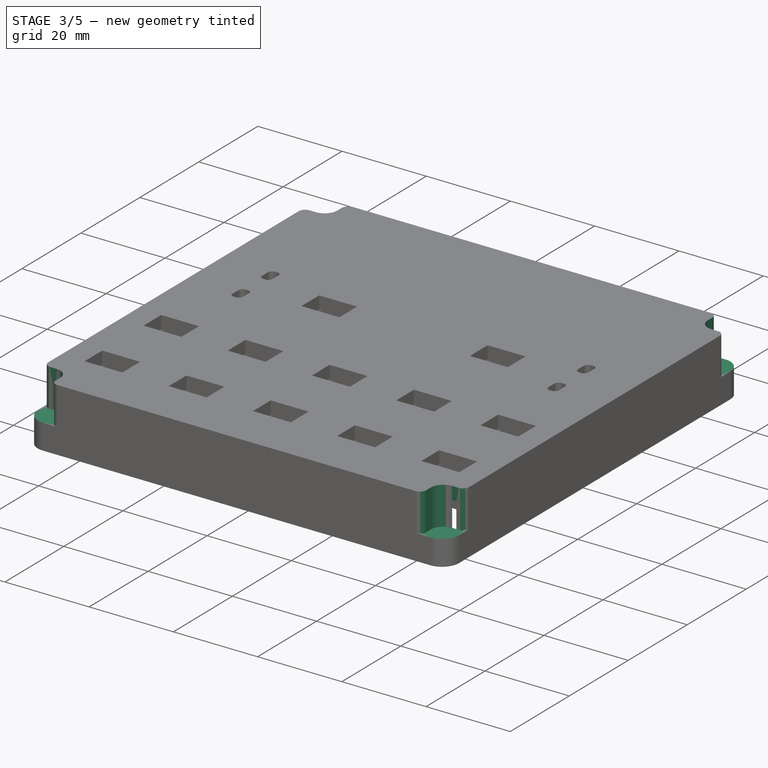
[diagram: stage 3 of 5 — iso view after this stage's code; geometry added in this stage tinted green]
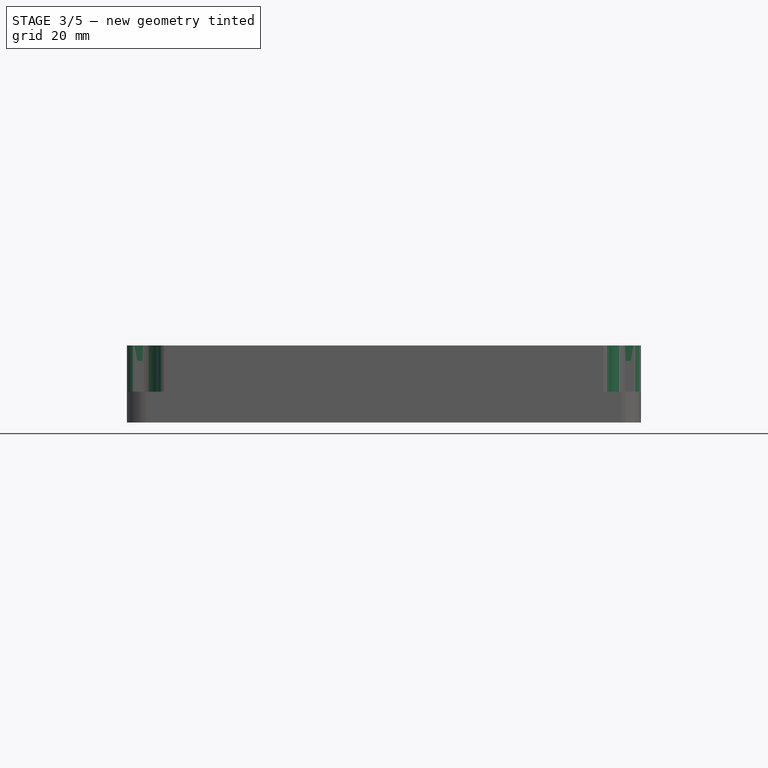
[diagram: stage 3 of 5 — front view after this stage's code; geometry added in this stage tinted green]
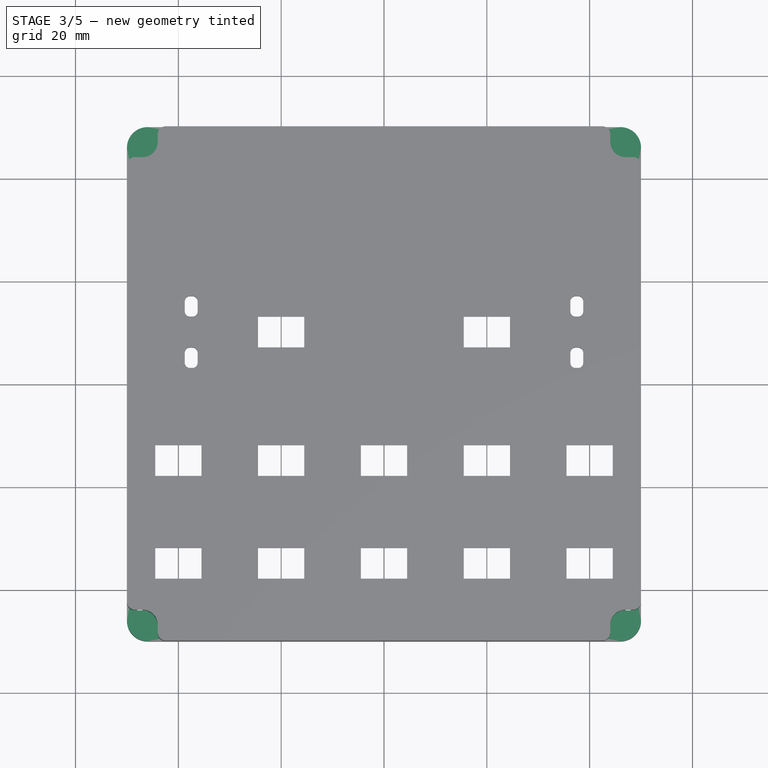
[diagram: stage 3 of 5 — top view after this stage's code; geometry added in this stage tinted green]
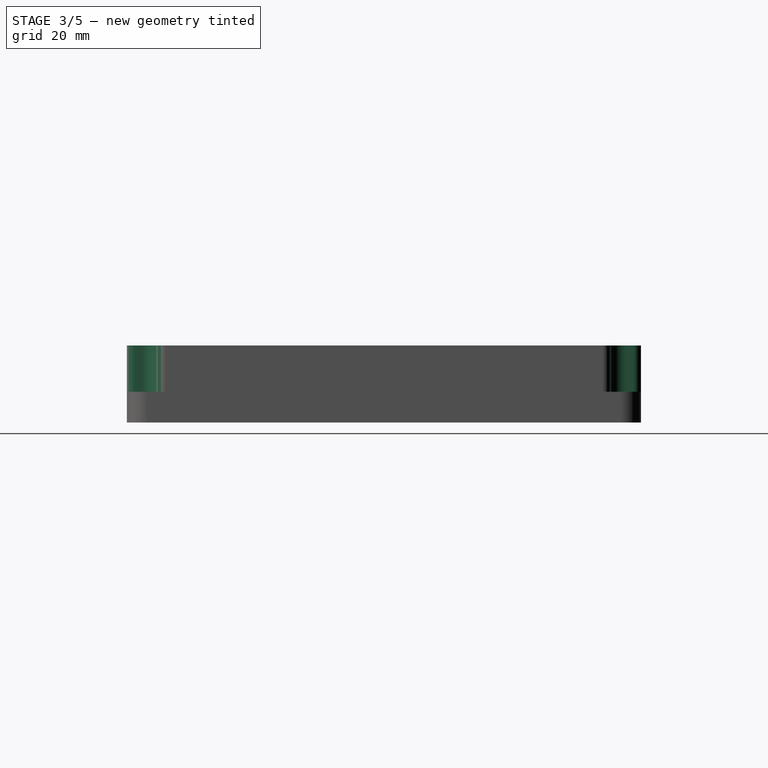
[diagram: stage 3 of 5 — right view after this stage's code; geometry added in this stage tinted green]
FEATURE [Sketcher::SketchObject] Sketch007  label="Cable hole"
  ExternalGeometry = -> [Pocket005]
  FullyConstrained = true
  MapMode = 5
  Placement = pos=(-50,0,0) rot=(0.57735,-0.57735,-0.57735;2.0944rad)
  Support = -> [Pocket005]
  sketch-geometry (4):
    g0: LineSegment StartX=-38 StartY=0 StartZ=0 EndX=-38 EndY=2 EndZ=0
    g1: LineSegment StartX=-34 StartY=0 StartZ=0 EndX=-34 EndY=2 EndZ=0
    g2: ArcOfCircle CenterX=-36 CenterY=2 CenterZ=0 NormalX=0 NormalY=0 NormalZ=1 AngleXU=0 Radius=2 StartAngle=3.54624e-11 EndAngle=3.14159
    g3: LineSegment StartX=-38 StartY=0 StartZ=0 EndX=-34 EndY=0 EndZ=0
  constraints (13):
    c: PointOnObject(g0,g-1)
    c: Vertical(g0)
    c: PointOnObject(g1,g-1)
    c: Vertical(g1)
    c: Equal(g0,g1)
    c: Coincident(g2,g0)
    c: Coincident(g2,g1)
    c: Diameter(g2) = 4
    c: DistanceY(g0,g0) = 2
    c: Horizontal(g2,g0)
    c: DistanceX(g-3,g2) = 14
    c: Coincident(g3,g0)
    c: Coincident(g3,g1)
FEATURE [PartDesign::Pocket] Pocket006  label="Cable hole001"
  BaseFeature = -> Pocket005
  Direction = (1,0,0)
  Length = 0
  Length2 = 5
  Profile = -> Sketch007
  ReferenceAxis = -> Sketch007 [N_Axis]
  Type = 2
FEATURE [Sketcher::SketchObject] Sketch008  label="Pi ventilation"
  FullyConstrained = true
  MapMode = 5
  Placement = pos=(0,50,0) rot=(0,0.707107,0.707107;3.14159rad)
  Support = -> [Pocket006]
  sketch-geometry (40):
    g0: ArcOfCircle CenterX=-15.5 CenterY=7.5 CenterZ=0 NormalX=0 NormalY=0 NormalZ=1 AngleXU=0 Radius=0.5 StartAngle=1.5708 EndAngle=3.14159
    g1: LineSegment StartX=-15.5 StartY=8 StartZ=0 EndX=-1.5 EndY=8 EndZ=0
    g2: ArcOfCircle CenterX=-1.5 CenterY=7.5 CenterZ=0 NormalX=0 NormalY=0 NormalZ=1 AngleXU=0 Radius=0.5 StartAngle=0 EndAngle=1.5708
    g3: LineSegment StartX=-1 StartY=7.5 StartZ=0 EndX=-1 EndY=6.5 EndZ=0
    g4: ArcOfCircle CenterX=-1.5 CenterY=6.5 CenterZ=0 NormalX=0 NormalY=0 NormalZ=1 AngleXU=0 Radius=0.5 StartAngle=4.71239 EndAngle=6.28319
    g5: LineSegment StartX=-1.5 StartY=6 StartZ=0 EndX=-15.5 EndY=6 EndZ=0
    g6: ArcOfCircle CenterX=-15.5 CenterY=6.5 CenterZ=0 NormalX=0 NormalY=0 NormalZ=1 AngleXU=0 Radius=0.5 StartAngle=3.14159 EndAngle=4.71239
    g7: LineSegment StartX=-16 StartY=6.5 StartZ=0 EndX=-16 EndY=7.5 EndZ=0
    g8: GeomPoint X=-16 Y=8 Z=0
    g9: GeomPoint X=-1 Y=6 Z=0
    g10: ArcOfCircle CenterX=1.5 CenterY=7.5 CenterZ=0 NormalX=0 NormalY=0 NormalZ=1 AngleXU=0 Radius=0.5 StartAngle=1.5708 EndAngle=3.14159
    g11: LineSegment StartX=1.5 StartY=8 StartZ=0 EndX=15.5 EndY=8 EndZ=0
    g12: ArcOfCircle CenterX=15.5 CenterY=7.5 CenterZ=0 NormalX=0 NormalY=0 NormalZ=1 AngleXU=0 Radius=0.5 StartAngle=0 EndAngle=1.5708
    g13: LineSegment StartX=16 StartY=7.5 StartZ=0 EndX=16 EndY=6.5 EndZ=0
    g14: ArcOfCircle CenterX=15.5 CenterY=6.5 CenterZ=0 NormalX=0 NormalY=0 NormalZ=1 AngleXU=0 Radius=0.5 StartAngle=4.71239 EndAngle=6.28319
    g15: LineSegment StartX=15.5 StartY=6 StartZ=0 EndX=1.5 EndY=6 EndZ=0
    g16: ArcOfCircle CenterX=1.5 CenterY=6.5 CenterZ=0 NormalX=0 NormalY=0 NormalZ=1 AngleXU=0 Radius=0.5 StartAngle=3.14159 EndAngle=4.71239
    g17: LineSegment StartX=1 StartY=6.5 StartZ=0 EndX=1 EndY=7.5 EndZ=0
    g18: GeomPoint X=1 Y=8 Z=0
    g19: GeomPoint X=16 Y=6 Z=0
    g20: ArcOfCircle CenterX=-15.5 CenterY=4.5 CenterZ=0 NormalX=0 NormalY=0 NormalZ=1 AngleXU=0 Radius=0.5 StartAngle=1.5708 EndAngle=3.14159
    g21: LineSegment StartX=-15.5 StartY=5 StartZ=0 EndX=-1.5 EndY=5 EndZ=0
    g22: ArcOfCircle CenterX=-1.5 CenterY=4.5 CenterZ=0 NormalX=0 NormalY=0 NormalZ=1 AngleXU=0 Radius=0.5 StartAngle=-9e-16 EndAngle=1.5708
    g23: LineSegment StartX=-1 StartY=4.5 StartZ=0 EndX=-1 EndY=3.5 EndZ=0
    g24: ArcOfCircle CenterX=-1.5 CenterY=3.5 CenterZ=0 NormalX=0 NormalY=0 NormalZ=1 AngleXU=0 Radius=0.5 StartAngle=4.71239 EndAngle=6.28319
    g25: LineSegment StartX=-1.5 StartY=3 StartZ=0 EndX=-15.5 EndY=3 EndZ=0
    g26: ArcOfCircle CenterX=-15.5 CenterY=3.5 CenterZ=0 NormalX=0 NormalY=0 NormalZ=1 AngleXU=0 Radius=0.5 StartAngle=3.14159 EndAngle=4.71239
    g27: LineSegment StartX=-16 StartY=3.5 StartZ=0 EndX=-16 EndY=4.5 EndZ=0
    g28: GeomPoint X=-16 Y=5 Z=0
    g29: GeomPoint X=-1 Y=3 Z=0
    g30: ArcOfCircle CenterX=1.5 CenterY=4.5 CenterZ=0 NormalX=0 NormalY=0 NormalZ=1 AngleXU=0 Radius=0.5 StartAngle=1.5708 EndAngle=3.14159
    g31: LineSegment StartX=1.5 StartY=5 StartZ=0 EndX=15.5 EndY=5 EndZ=0
    g32: ArcOfCircle CenterX=15.5 CenterY=4.5 CenterZ=0 NormalX=0 NormalY=0 NormalZ=1 AngleXU=0 Radius=0.5 StartAngle=1.225e-13 EndAngle=1.5708
    g33: LineSegment StartX=16 StartY=4.5 StartZ=0 EndX=16 EndY=3.5 EndZ=0
    g34: ArcOfCircle CenterX=15.5 CenterY=3.5 CenterZ=0 NormalX=0 NormalY=0 NormalZ=1 AngleXU=0 Radius=0.5 StartAngle=4.71239 EndAngle=6.28319
    g35: LineSegment StartX=15.5 StartY=3 StartZ=0 EndX=1.5 EndY=3 EndZ=0
    g36: ArcOfCircle CenterX=1.5 CenterY=3.5 CenterZ=0 NormalX=0 NormalY=0 NormalZ=1 AngleXU=0 Radius=0.5 StartAngle=3.14159 EndAngle=4.71239
    g37: LineSegment StartX=1 StartY=3.5 StartZ=0 EndX=1 EndY=4.5 EndZ=0
    g38: GeomPoint X=1 Y=5 Z=0
    g39: GeomPoint X=16 Y=3 Z=0
  constraints (94):
    c: Tangent(g0,g1) = 1.5708
    c: Tangent(g1,g2) = 1.5708
    c: Tangent(g2,g3) = 1.5708
    c: Tangent(g3,g4) = 1.5708
    c: Tangent(g4,g5) = 1.5708
    c: Tangent(g5,g6) = 1.5708
    c: Tangent(g6,g7) = 1.5708
    c: Tangent(g7,g0) = 1.5708
    c: Horizontal(g1)
    c: Horizontal(g5)
    c: Vertical(g3)
    c: Vertical(g7)
    c: Equal(g0,g2)
    c: Equal(g2,g4)
    c: Equal(g4,g6)
    c: PointOnObject(g8,g1)
    c: PointOnObject(g8,g7)
    c: PointOnObject(g9,g3)
    c: PointOnObject(g9,g5)
    c: DistanceY(g5,g0) = 2
    c: Radius(g0) = 0.5
    c: DistanceX(g6,g3) = 15
    c: DistanceX(g3,g-1) = 1
    c: Tangent(g10,g11) = 1.5708
    c: Tangent(g11,g12) = 1.5708
    c: Tangent(g12,g13) = 1.5708
    c: Tangent(g13,g14) = 1.5708
    c: Tangent(g14,g15) = 1.5708
    c: Tangent(g15,g16) = 1.5708
    c: Tangent(g16,g17) = 1.5708
    c: Tangent(g17,g10) = 1.5708
    c: Horizontal(g11)
    c: Horizontal(g15)
    c: Vertical(g13)
    c: Vertical(g17)
    c: Equal(g10,g12)
    c: Equal(g12,g14)
    c: Equal(g14,g16)
    c: PointOnObject(g18,g11)
    c: PointOnObject(g18,g17)
    c: PointOnObject(g19,g13)
    c: PointOnObject(g19,g15)
    c: DistanceY(g15,g10) = 2
    c: Equal(g0,g10) = 0.5
    c: DistanceX(g16,g13) = 15
    c: Tangent(g20,g21) = 1.5708
    c: Tangent(g21,g22) = 1.5708
    c: Tangent(g22,g23) = 1.5708
    c: Tangent(g23,g24) = 1.5708
    c: Tangent(g24,g25) = 1.5708
    c: Tangent(g25,g26) = 1.5708
    c: Tangent(g26,g27) = 1.5708
    c: Tangent(g27,g20) = 1.5708
    c: Horizontal(g21)
    c: Horizontal(g25)
    c: Vertical(g23)
    c: Vertical(g27)
    c: Equal(g20,g22)
    c: Equal(g22,g24)
    c: Equal(g24,g26)
    c: PointOnObject(g28,g21)
    c: PointOnObject(g28,g27)
    c: PointOnObject(g29,g23)
    c: PointOnObject(g29,g25)
    c: DistanceY(g25,g20) = 2
    c: Equal(g0,g20) = 0.5
    c: DistanceX(g26,g23) = 15
    c: Tangent(g30,g31) = 1.5708
    c: Tangent(g31,g32) = 1.5708
    c: Tangent(g32,g33) = 1.5708
    c: Tangent(g33,g34) = 1.5708
    c: Tangent(g34,g35) = 1.5708
    c: Tangent(g35,g36) = 1.5708
    c: Tangent(g36,g37) = 1.5708
    c: Tangent(g37,g30) = 1.5708
    c: Horizontal(g31)
    c: Horizontal(g35)
    c: Vertical(g33)
    c: Vertical(g37)
    c: Equal(g30,g32)
    c: Equal(g32,g34)
    c: Equal(g34,g36)
    c: PointOnObject(g38,g31)
    c: PointOnObject(g38,g37)
    c: PointOnObject(g39,g33)
    c: PointOnObject(g39,g35)
    c: DistanceY(g35,g30) = 2
    c: Equal(g0,g30) = 0.5
    c: DistanceX(g36,g33) = 15
    c: DistanceY(g20,g5) = 1
    c: Vertical(g2,g22)
    c: Symmetric(g10,g2,g-2)
    c: Symmetric(g22,g30,g-2)
    c: DistanceY(g-1,g24) = 3
FEATURE [PartDesign::Pocket] Pocket007  label="Pi ventilation001"
  BaseFeature = -> Pocket006
  Direction = (0,-1,2e-16)
  Length = 5
  Length2 = 5
  Profile = -> Sketch008
  ReferenceAxis = -> Sketch008 [N_Axis]
  Type = 2
FEATURE [Sketcher::SketchObject] Sketch009  label="Screw mount top"
  ExternalGeometry = -> [Pocket007]
  FullyConstrained = true
  MapMode = 5
  Placement = pos=(0,0,15) rot=(0,0,1;0rad)
  Support = -> [Pocket007]
  sketch-geometry (28):
    g0: ArcOfCircle CenterX=-47 CenterY=47 CenterZ=0 NormalX=0 NormalY=0 NormalZ=1 AngleXU=0 Radius=3 StartAngle=4.71239 EndAngle=6.28319
    g1: LineSegment StartX=-44 StartY=47 StartZ=0 EndX=-44 EndY=48.5 EndZ=0
    g2: LineSegment StartX=-47 StartY=44 StartZ=0 EndX=-48.5 EndY=44 EndZ=0
    g3: ArcOfCircle CenterX=-42.5 CenterY=48.5 CenterZ=0 NormalX=0 NormalY=0 NormalZ=1 AngleXU=0 Radius=1.5 StartAngle=1.5708 EndAngle=3.14159
    g4: ArcOfCircle CenterX=-48.5 CenterY=42.5 CenterZ=0 NormalX=0 NormalY=0 NormalZ=1 AngleXU=0 Radius=1.5 StartAngle=1.5708 EndAngle=3.14159
    g5: LineSegment StartX=-42.5 StartY=50 StartZ=0 EndX=-50 EndY=50 EndZ=0
    g6: LineSegment StartX=-50 StartY=42.5 StartZ=0 EndX=-50 EndY=50 EndZ=0
    g7: ArcOfCircle CenterX=47 CenterY=47 CenterZ=0 NormalX=0 NormalY=0 NormalZ=1 AngleXU=0 Radius=3 StartAngle=3.14159 EndAngle=4.71239
    g8: LineSegment StartX=44 StartY=47 StartZ=0 EndX=44 EndY=48.5 EndZ=0
    g9: LineSegment StartX=47 StartY=44 StartZ=0 EndX=48.5 EndY=44 EndZ=0
    g10: ArcOfCircle CenterX=42.5 CenterY=48.5 CenterZ=0 NormalX=0 NormalY=0 NormalZ=1 AngleXU=0 Radius=1.5 StartAngle=0 EndAngle=1.5708
    g11: ArcOfCircle CenterX=48.5 CenterY=42.5 CenterZ=0 NormalX=0 NormalY=0 NormalZ=1 AngleXU=0 Radius=1.5 StartAngle=0 EndAngle=1.5708
    g12: LineSegment StartX=42.5 StartY=50 StartZ=0 EndX=50 EndY=50 EndZ=0
    g13: LineSegment StartX=50 StartY=42.5 StartZ=0 EndX=50 EndY=50 EndZ=0
    g14: ArcOfCircle CenterX=47 CenterY=-47 CenterZ=0 NormalX=0 NormalY=0 NormalZ=1 AngleXU=0 Radius=3 StartAngle=1.5708 EndAngle=3.14159
    g15: LineSegment StartX=44 StartY=-47 StartZ=0 EndX=44 EndY=-48.5 EndZ=0
    g16: LineSegment StartX=47 StartY=-44 StartZ=0 EndX=48.5 EndY=-44 EndZ=0
    g17: ArcOfCircle CenterX=42.5 CenterY=-48.5 CenterZ=0 NormalX=0 NormalY=0 NormalZ=1 AngleXU=0 Radius=1.5 StartAngle=4.71239 EndAngle=6.28319
    g18: ArcOfCircle CenterX=48.5 CenterY=-42.5 CenterZ=0 NormalX=0 NormalY=0 NormalZ=1 AngleXU=0 Radius=1.5 StartAngle=4.71239 EndAngle=6.28319
    g19: LineSegment StartX=42.5 StartY=-50 StartZ=0 EndX=50 EndY=-50 EndZ=0
    g20: LineSegment StartX=50 StartY=-42.5 StartZ=0 EndX=50 EndY=-50 EndZ=0
    g21: ArcOfCircle CenterX=-47 CenterY=-47 CenterZ=0 NormalX=0 NormalY=0 NormalZ=1 AngleXU=0 Radius=3 StartAngle=0 EndAngle=1.5708
    g22: LineSegment StartX=-44 StartY=-47 StartZ=0 EndX=-44 EndY=-48.5 EndZ=0
    g23: LineSegment StartX=-47 StartY=-44 StartZ=0 EndX=-48.5 EndY=-44 EndZ=0
    g24: ArcOfCircle CenterX=-42.5 CenterY=-48.5 CenterZ=0 NormalX=0 NormalY=0 NormalZ=1 AngleXU=0 Radius=1.5 StartAngle=3.14159 EndAngle=4.71239
    g25: ArcOfCircle CenterX=-48.5 CenterY=-42.5 CenterZ=0 NormalX=0 NormalY=0 NormalZ=1 AngleXU=0 Radius=1.5 StartAngle=3.14159 EndAngle=4.71239
    g26: LineSegment StartX=-42.5 StartY=-50 StartZ=0 EndX=-50 EndY=-50 EndZ=0
    g27: LineSegment StartX=-50 StartY=-42.5 StartZ=0 EndX=-50 EndY=-50 EndZ=0
  constraints (93):
    c: Vertical(g0,g0)
    c: Horizontal(g0,g0)
    c: DistanceX(g-3,g0) = 3
    c: Radius(g0) = 3
    c: Coincident(g1,g0)
    c: Vertical(g1)
    c: Coincident(g2,g0)
    c: Horizontal(g2)
    c: Equal(g2,g1)
    c: DistanceY(g1,g1) = 1.5
    c: Coincident(g3,g1)
    c: PointOnObject(g3,g-4)
    c: Horizontal(g3,g1)
    c: Coincident(g4,g2)
    c: PointOnObject(g4,g-3)
    c: Vertical(g4,g2)
    c: Horizontal(g4,g4)
    c: Vertical(g3,g3)
    c: DistanceY(g0,g-4) = 3
    c: Coincident(g5,g3)
    c: Horizontal(g5)
    c: Coincident(g6,g4)
    c: Vertical(g6)
    c: Coincident(g6,g5)
    c: Coincident(g8,g7)
    c: Vertical(g8)
    c: Coincident(g9,g7)
    c: Horizontal(g9)
    c: Equal(g9,g8)
    c: Coincident(g10,g8)
    c: Coincident(g11,g9)
    c: Coincident(g12,g10)
    c: Horizontal(g12)
    c: Coincident(g13,g11)
    c: Vertical(g13)
    c: Coincident(g13,g12)
    c: Coincident(g15,g14)
    c: Vertical(g15)
    c: Coincident(g16,g14)
    c: Horizontal(g16)
    c: Equal(g16,g15)
    c: Coincident(g17,g15)
    c: Coincident(g18,g16)
    c: Coincident(g19,g17)
    c: Horizontal(g19)
    c: Coincident(g20,g18)
    c: Vertical(g20)
    c: Coincident(g20,g19)
    c: Coincident(g22,g21)
    c: Vertical(g22)
    c: Coincident(g23,g21)
    c: Horizontal(g23)
    c: Equal(g23,g22)
    c: Coincident(g24,g22)
    c: Coincident(g25,g23)
    c: Coincident(g26,g24)
    c: Horizontal(g26)
    c: Coincident(g27,g25)
    c: Vertical(g27)
    c: Coincident(g27,g26)
    c: Vertical(g18,g16)
    c: Horizontal(g18,g18)
    c: Horizontal(g15,g17)
    c: Vertical(g17,g17)
    c: Horizontal(g22,g24)
    c: Vertical(g24,g24)
    c: Vertical(g23,g25)
    c: Horizontal(g25,g25)
    c: Vertical(g10,g10)
    c: Horizontal(g10,g8)
    c: Vertical(g11,g9)
    c: Horizontal(g11,g11)
    c: Horizontal(g7,g7)
    c: Vertical(g7,g7)
    c: Vertical(g14,g14)
    c: Horizontal(g14,g14)
    c: Horizontal(g21,g21)
    c: Vertical(g21,g21)
    c: Equal(g7,g14)
    c: Equal(g14,g21)
    c: Equal(g21,g0)
    c: Symmetric(g0,g14,g-1)
    c: Symmetric(g0,g7,g-2)
    c: Symmetric(g0,g21,g-1)
    c: Equal(g8,g1)
    c: Equal(g1,g22)
    c: Equal(g22,g15)
    c: PointOnObject(g18,g-6)
    c: PointOnObject(g17,g-5)
    c: PointOnObject(g25,g-3)
    c: PointOnObject(g24,g-5)
    c: PointOnObject(g11,g-6)
    c: PointOnObject(g10,g-4)
FEATURE [PartDesign::Pocket] Pocket008  label="Screw mount top001"
  BaseFeature = -> Pocket007
  Direction = (0,0,-1)
  Length = 0
  Length2 = 5
  Offset = -6
  Profile = -> Sketch009
  ReferenceAxis = -> Sketch009 [N_Axis]
  Type = 3
  UpToFace = -> Pocket007 [Face2]
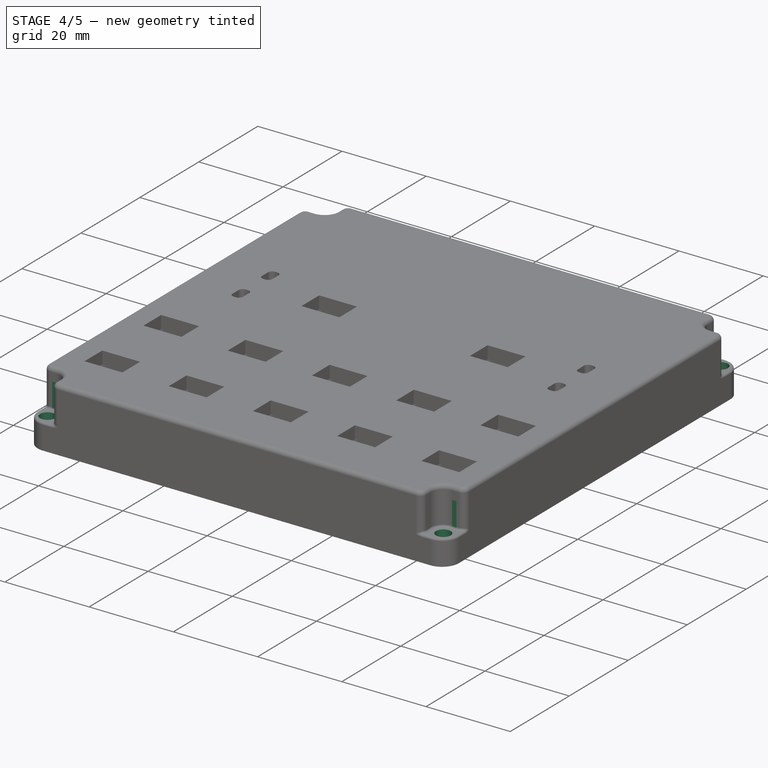
[diagram: stage 4 of 5 — iso view after this stage's code; geometry added in this stage tinted green]
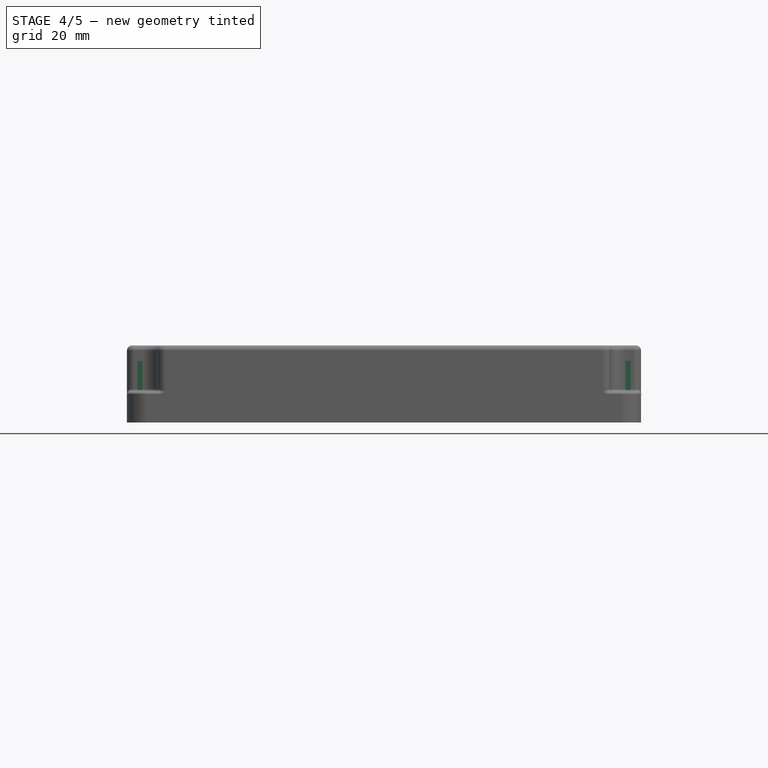
[diagram: stage 4 of 5 — front view after this stage's code; geometry added in this stage tinted green]
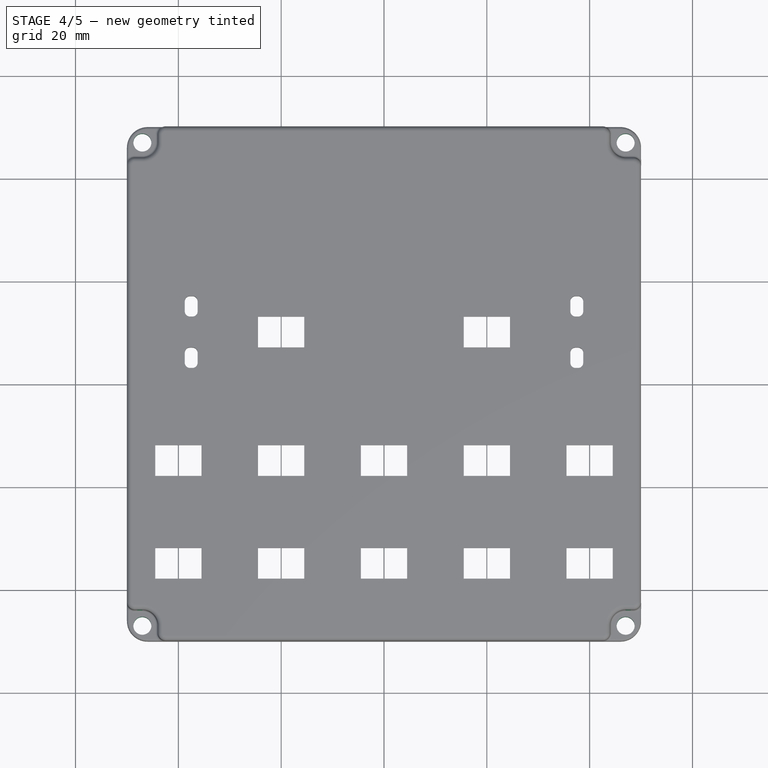
[diagram: stage 4 of 5 — top view after this stage's code; geometry added in this stage tinted green]
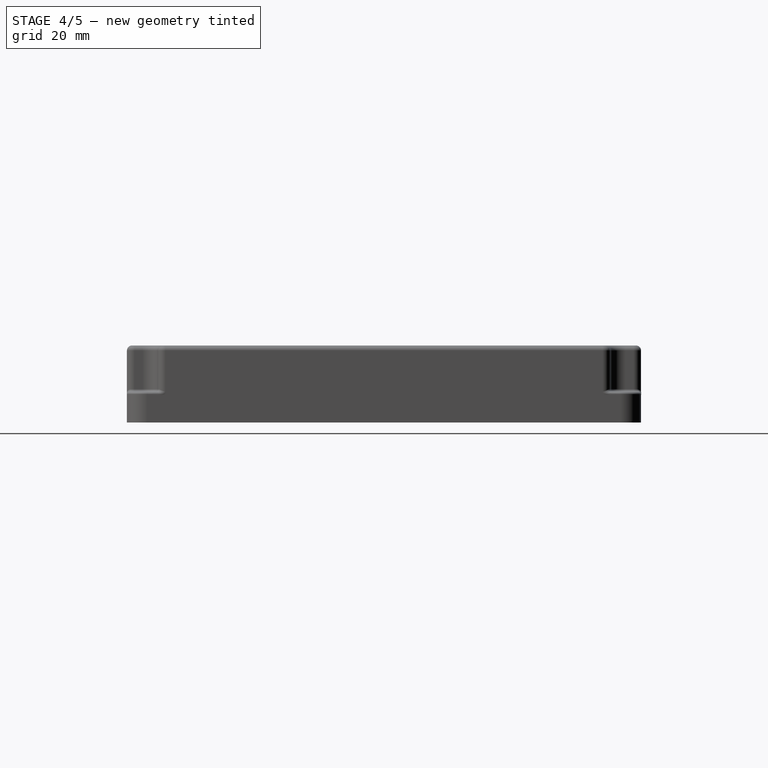
[diagram: stage 4 of 5 — right view after this stage's code; geometry added in this stage tinted green]
FEATURE [Sketcher::SketchObject] Sketch010  label="Screw mount bottom"
  ExternalGeometry = -> [Pocket008]
  FullyConstrained = true
  MapMode = 5
  Placement = pos=(0,0,0) rot=(1,0,0;3.14159rad)
  Support = -> [Pocket008]
  sketch-geometry (4):
    g0: Circle CenterX=-47 CenterY=47 CenterZ=0 NormalX=0 NormalY=0 NormalZ=1 AngleXU=0 Radius=1.75
    g1: Circle CenterX=47 CenterY=47 CenterZ=0 NormalX=0 NormalY=0 NormalZ=1 AngleXU=0 Radius=1.75
    g2: Circle CenterX=-47 CenterY=-47 CenterZ=0 NormalX=0 NormalY=0 NormalZ=1 AngleXU=0 Radius=1.75
    g3: Circle CenterX=47 CenterY=-47 CenterZ=0 NormalX=0 NormalY=0 NormalZ=1 AngleXU=0 Radius=1.75
  constraints (9):
    c: Equal(g0,g1)
    c: Equal(g0,g3)
    c: Equal(g0,g2)
    c: Diameter(g0) = 3.5
    c: DistanceY(g0,g-3) = 3
    c: DistanceX(g-4,g0) = 3
    c: Symmetric(g0,g1,g-2)
    c: Symmetric(g0,g3,g-1)
    c: Symmetric(g0,g2,g-1)
FEATURE [PartDesign::Pocket] Pocket009  label="Screw mount bottom001"
  BaseFeature = -> Pocket008
  Direction = (0,0,1)
  Length = 5
  Length2 = 5
  Profile = -> Sketch010
  ReferenceAxis = -> Sketch010 [N_Axis]
  Type = 2
FEATURE [Sketcher::SketchObject] Sketch011  label="Screw mount walls"
  ExternalGeometry = -> [Pocket009]
  FullyConstrained = true
  MapMode = 5
  Placement = pos=(0,0,0) rot=(1,0,0;3.14159rad)
  Support = -> [Pocket009]
  sketch-geometry (12):
    g0: LineSegment StartX=-48 StartY=43.4 StartZ=0 EndX=-46 EndY=43.4 EndZ=0
    g1: ArcOfCircle CenterX=-48 CenterY=42.4 CenterZ=0 NormalX=0 NormalY=0 NormalZ=1 AngleXU=0 Radius=1 StartAngle=1.5708 EndAngle=3.14159
    g2: LineSegment StartX=-49 StartY=42.4 StartZ=0 EndX=-49 EndY=43 EndZ=0
    g3: LineSegment StartX=-44.9608 StartY=44 StartZ=0 EndX=-48 EndY=44 EndZ=0
    g4: ArcOfCircle CenterX=-48 CenterY=43 CenterZ=0 NormalX=0 NormalY=0 NormalZ=1 AngleXU=0 Radius=1 StartAngle=1.5708 EndAngle=3.14159
    g5: LineSegment StartX=48 StartY=43.4 StartZ=0 EndX=46 EndY=43.4 EndZ=0
    g6: ArcOfCircle CenterX=48 CenterY=42.4 CenterZ=0 NormalX=0 NormalY=0 NormalZ=1 AngleXU=0 Radius=1 StartAngle=-9e-16 EndAngle=1.5708
    g7: LineSegment StartX=49 StartY=42.4 StartZ=0 EndX=49 EndY=43 EndZ=0
    g8: LineSegment StartX=44.9608 StartY=44 StartZ=0 EndX=48 EndY=44 EndZ=0
    g9: ArcOfCircle CenterX=48 CenterY=43 CenterZ=0 NormalX=0 NormalY=0 NormalZ=1 AngleXU=0 Radius=1 StartAngle=0 EndAngle=1.5708
    g10: LineSegment StartX=-46 StartY=43.4 StartZ=0 EndX=-44.9608 EndY=44 EndZ=0
    g11: LineSegment StartX=46 StartY=43.4 StartZ=0 EndX=44.9608 EndY=44 EndZ=0
  constraints (35):
    c: Horizontal(g0)
    c: DistanceY(g0,g-4) = 0.6
    c: Coincident(g1,g0)
    c: PointOnObject(g1,g-3)
    c: Vertical(g0,g1)
    c: Vertical(g-4,g0)
    c: Horizontal(g1,g1)
    c: DistanceX(g0,g0) = 2
    c: PointOnObject(g3,g-4)
    c: Coincident(g2,g1)
    c: Coincident(g2,g-3)
    c: Horizontal(g3)
    c: Coincident(g4,g2)
    c: Coincident(g4,g3)
    c: Horizontal(g4,g2)
    c: Vertical(g4,g4)
    c: Horizontal(g5)
    c: Coincident(g6,g5)
    c: Coincident(g7,g6)
    c: Horizontal(g8)
    c: Coincident(g9,g7)
    c: Coincident(g9,g8)
    c: Symmetric(g1,g6,g-2)
    c: Symmetric(g1,g6,g-2)
    c: Symmetric(g2,g7,g-2)
    c: Symmetric(g4,g9,g-2)
    c: Symmetric(g0,g5,g-2)
    c: Symmetric(g8,g3,g-2)
    c: Symmetric(g0,g5,g-2)
    c: Symmetric(g8,g3,g-2)
    c: Coincident(g10,g0)
    c: Coincident(g10,g3)
    c: Angle(g10,g0) = 2.61799
    c: Coincident(g11,g5)
    c: Coincident(g11,g8)
FEATURE [PartDesign::Pad] Pad001  label="Screw mount walls001"
  BaseFeature = -> Pocket009
  Direction = (0,0,-1)
  Length = 10
  Length2 = 10
  Profile = -> Sketch011
  ReferenceAxis = -> Sketch011 [N_Axis]
  Type = 3
  UpToFace = -> Pocket009 [Face277]
FEATURE [PartDesign::Fillet] Fillet
  Base = -> Pad001 [Edge170,Edge169,Edge168,Edge167,Edge165,Edge166,Edge164,Edge185,Edge184,Edge183,Edge182,Edge181,Edge180,Edge179,Edge178,Edge177,Edge176,Edge175,Edge9,Edge162,Edge174,Edge173,Edge172,Edge171]
  BaseFeature = -> Pad001
  Radius = 1
  SupportTransform = false
  UseAllEdges = false
FEATURE [PartDesign::Fillet] Fillet001
  Base = -> Fillet [Edge355,Edge294,Edge350,Edge21,Edge23,Edge3,Edge6,Edge34,Edge36,Edge308,Edge344,Edge348,Edge817,Edge818,Edge819,Edge820,Edge821,Edge816,Edge19,Edge20,Edge22,Edge24,Edge25,Edge15,Edge28,Edge32,Edge33,Edge35,Edge37,Edge827,Edge826,Edge825,Edge824,Edge822]
  BaseFeature = -> Fillet
  Radius = 0.5
  SupportTransform = false
  UseAllEdges = false
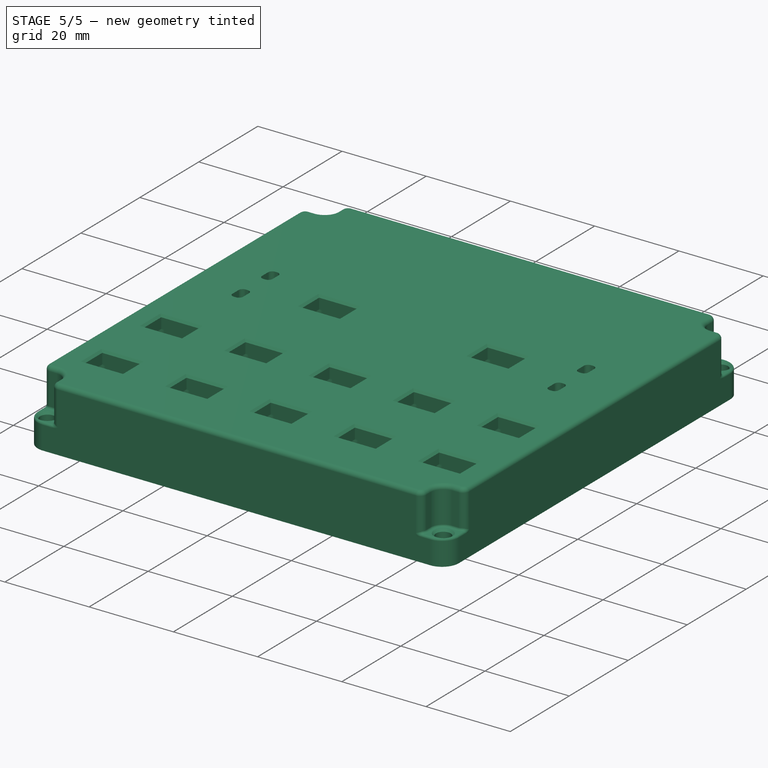
[diagram: stage 5 of 5 — iso view after this stage's code; geometry added in this stage tinted green]
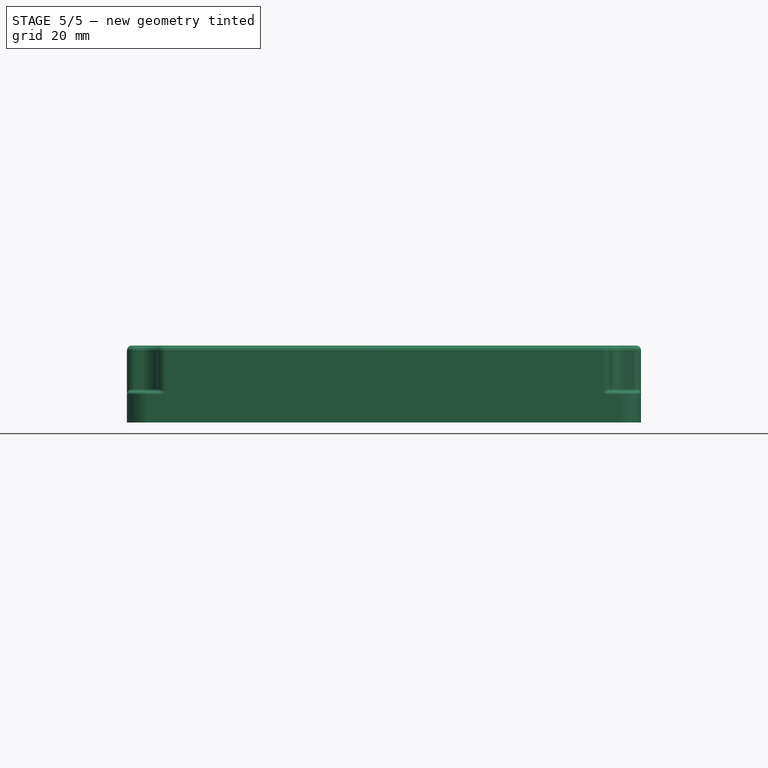
[diagram: stage 5 of 5 — front view after this stage's code; geometry added in this stage tinted green]
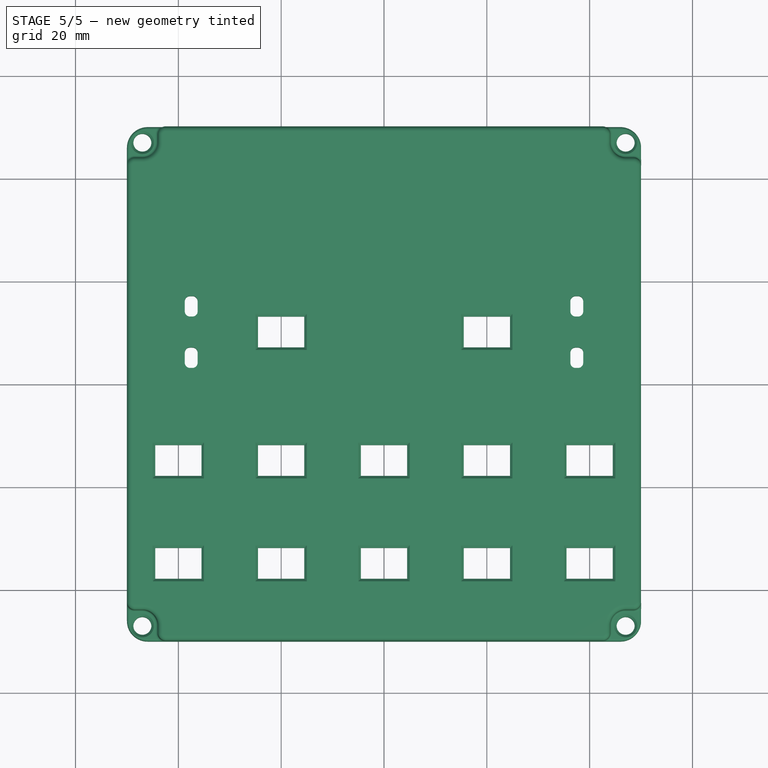
[diagram: stage 5 of 5 — top view after this stage's code; geometry added in this stage tinted green]
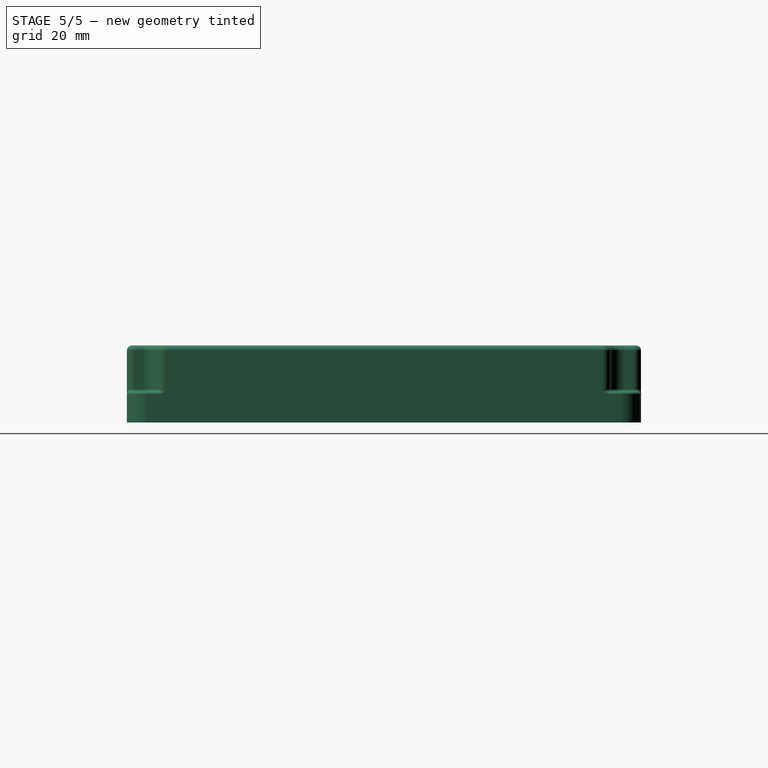
[diagram: stage 5 of 5 — right view after this stage's code; geometry added in this stage tinted green]
FEATURE [PartDesign::Chamfer] Chamfer
  Angle = 45
  Base = -> Fillet001 [Edge194,Edge490,Edge520,Edge394]
  BaseFeature = -> Fillet001
  ChamferType = 0
  FlipDirection = false
  Size = 0.5
  Size2 = 1
  SupportTransform = false
  UseAllEdges = false
FEATURE [PartDesign::Fillet] Fillet002
  Base = -> Chamfer [Edge211,Edge213,Edge50,Edge48,Edge217,Edge52]
  BaseFeature = -> Chamfer
  Radius = 0.5
  SupportTransform = false
  UseAllEdges = false
FEATURE [PartDesign::Chamfer] Chamfer001
  Angle = 45
  Base = -> Fillet002 [Edge608,Edge583,Edge585,Edge584,Edge582,Edge595,Edge597,Edge596,Edge594,Edge589,Edge587,Edge586,Edge588,Edge599,Edge601,Edge600,Edge598,Edge593,Edge591,Edge590,Edge592,Edge611,Edge613,Edge612,Edge610,Edge605,Edge603,Edge602,Edge604,Edge615,Edge617,Edge616,Edge614,Edge609,Edge607,Edge606,Edge618,Edge619,Edge621,Edge620,+8 more]
  BaseFeature = -> Fillet002
  ChamferType = 0
  FlipDirection = false
  Size = 0.5
  Size2 = 1
  SupportTransform = false
  UseAllEdges = false
FEATURE [PartDesign::Body] Body
  Group = -> [Sketch,Pad,Sketch001,Pocket,Sketch002,Pocket001,Sketch003,Pocket002,Sketch004,Pocket003,Sketch005,Pocket004,Sketch006,Pocket005,Sketch007,Pocket006,Sketch008,Pocket007,Sketch009,Pocket008,Sketch010,Pocket009,Sketch011,Pad001,Fillet,Fillet001,Chamfer,Fillet002,Chamfer001]
  Origin = -> Origin
  Tip = -> Chamfer001
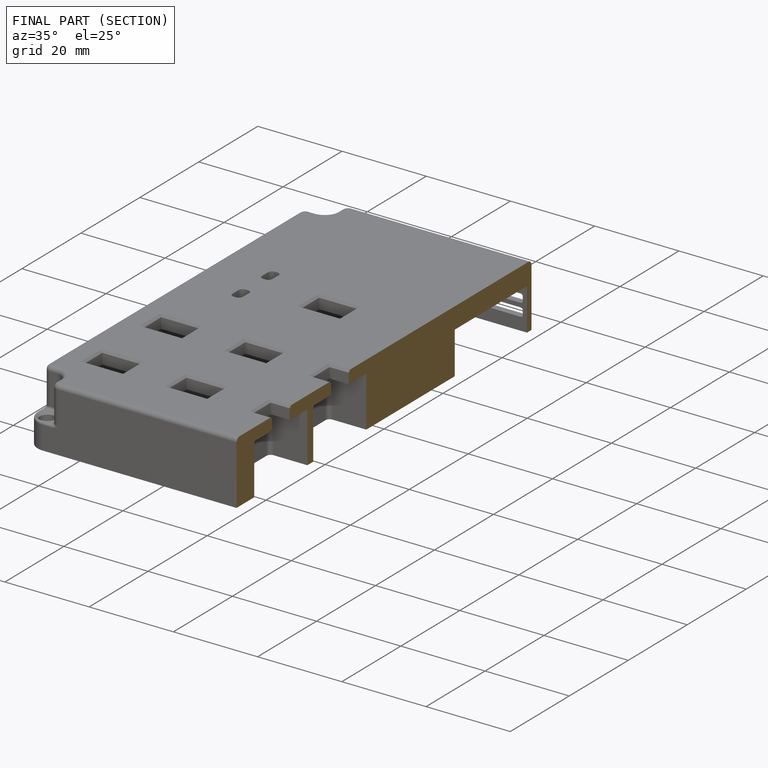
[diagram: finished part — half-section view (interior)]
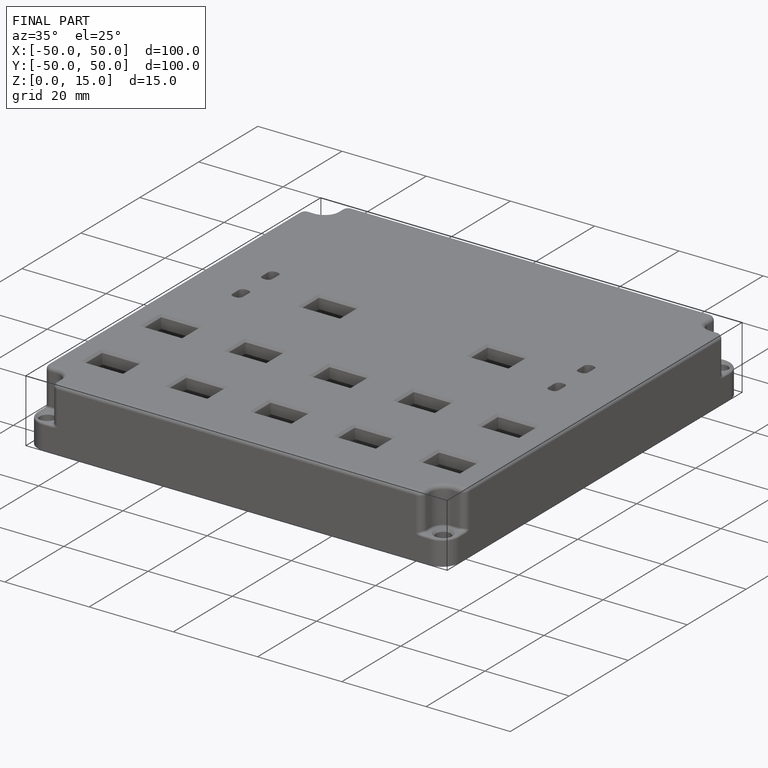
[diagram: finished part — iso view with bounding-box wireframe]
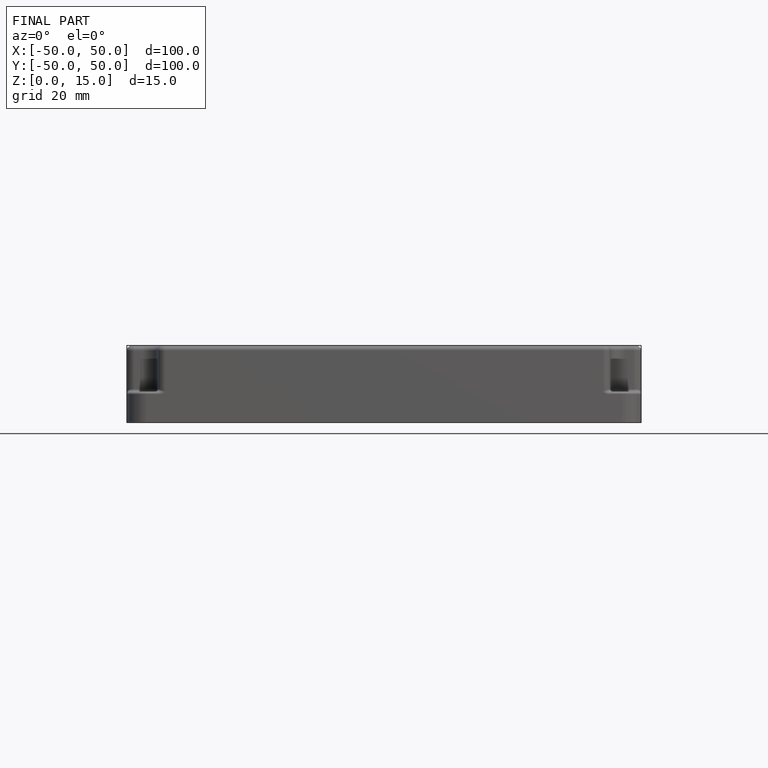
[diagram: finished part — front view with bounding-box wireframe]
